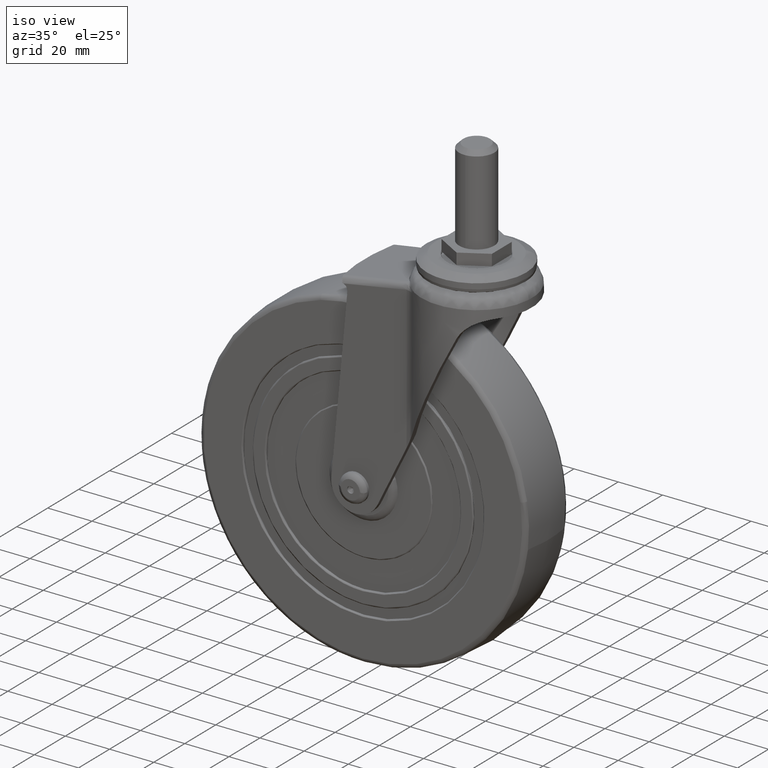
[diagram: clean part render]
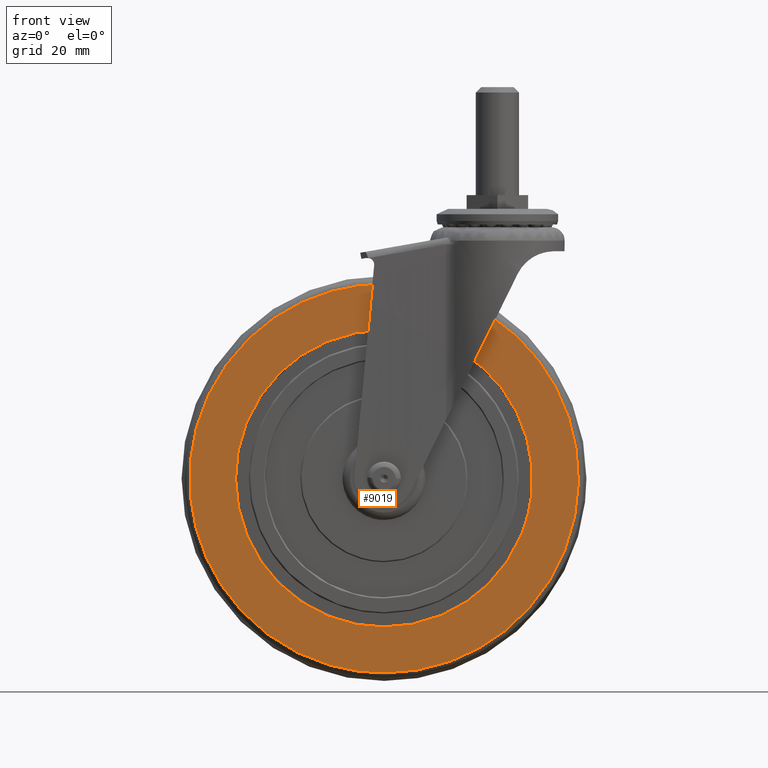
[diagram: tour spotlight — one face highlighted and labeled with its STEP entity id]
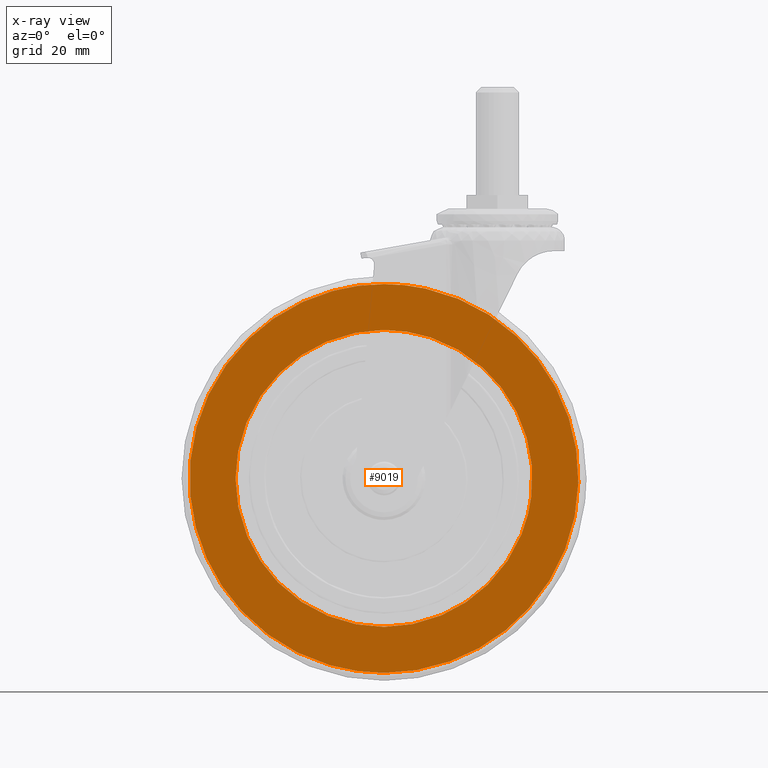
[diagram: x-ray of the same camera — body ghosted, this tour face saturated]
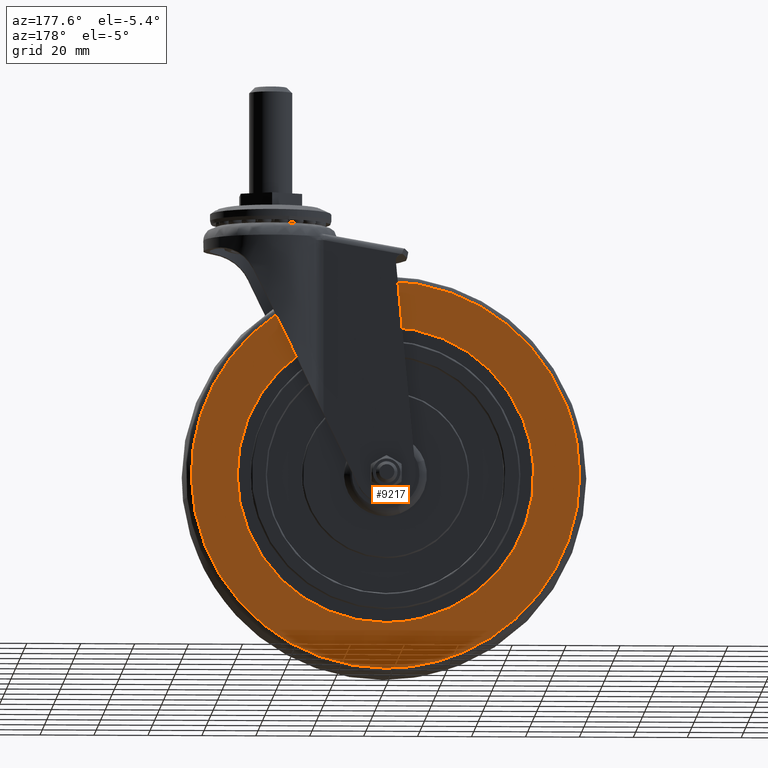
[diagram: tour spotlight — one face highlighted and labeled with its STEP entity id]
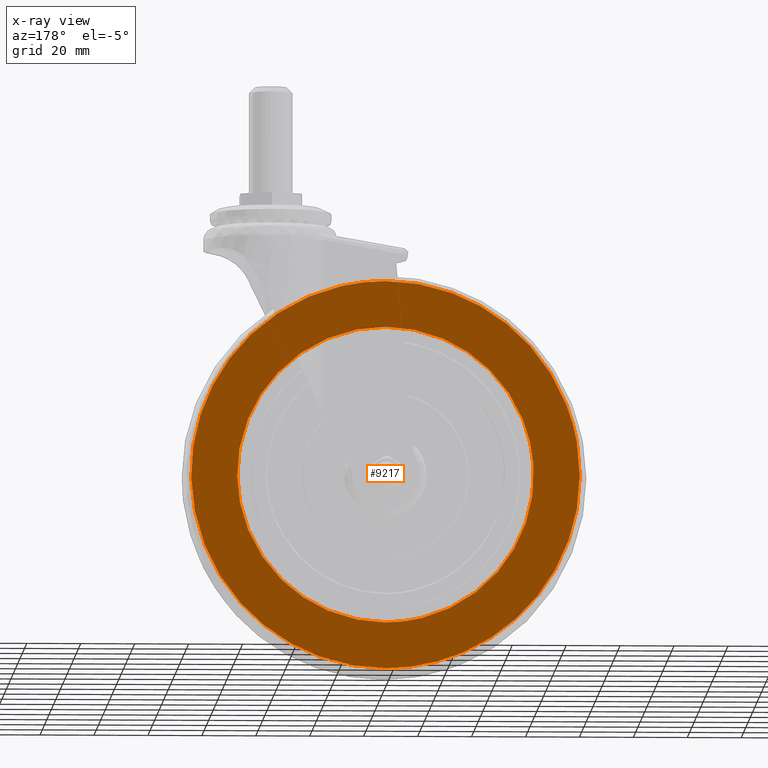
[diagram: x-ray of the same camera — body ghosted, this tour face saturated]
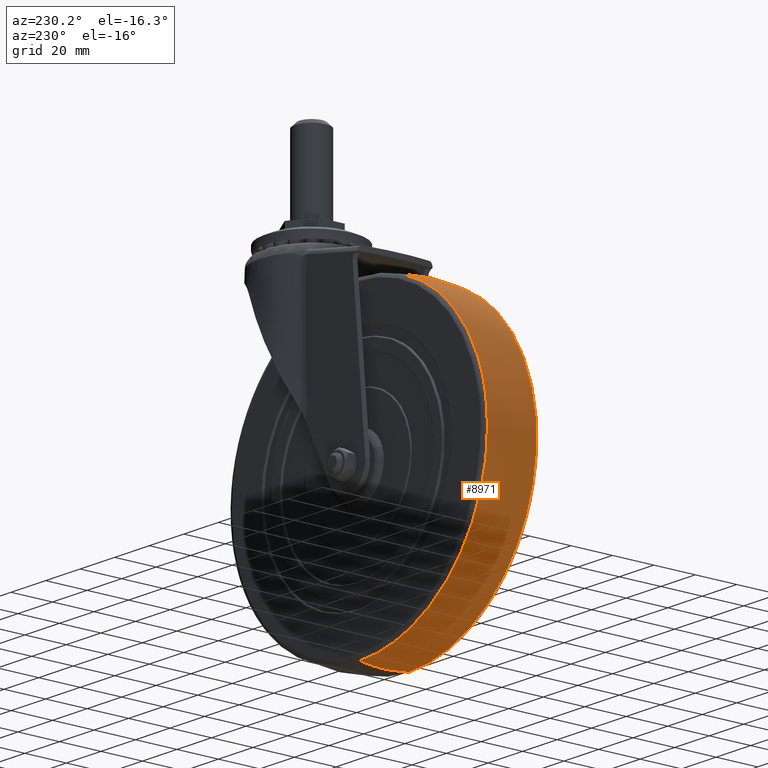
[diagram: tour spotlight — one face highlighted and labeled with its STEP entity id]
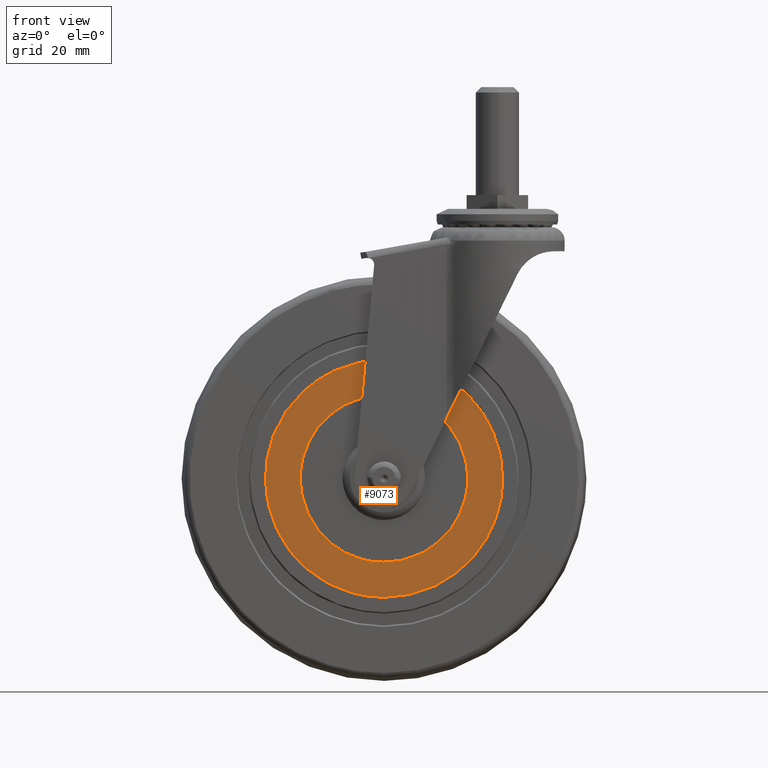
[diagram: tour spotlight — one face highlighted and labeled with its STEP entity id]
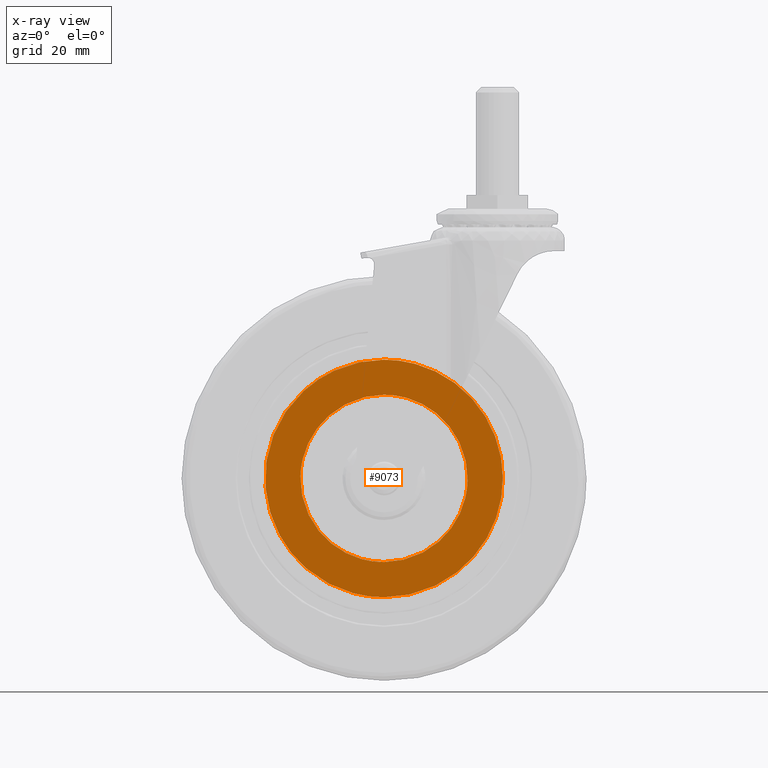
[diagram: x-ray of the same camera — body ghosted, this tour face saturated]
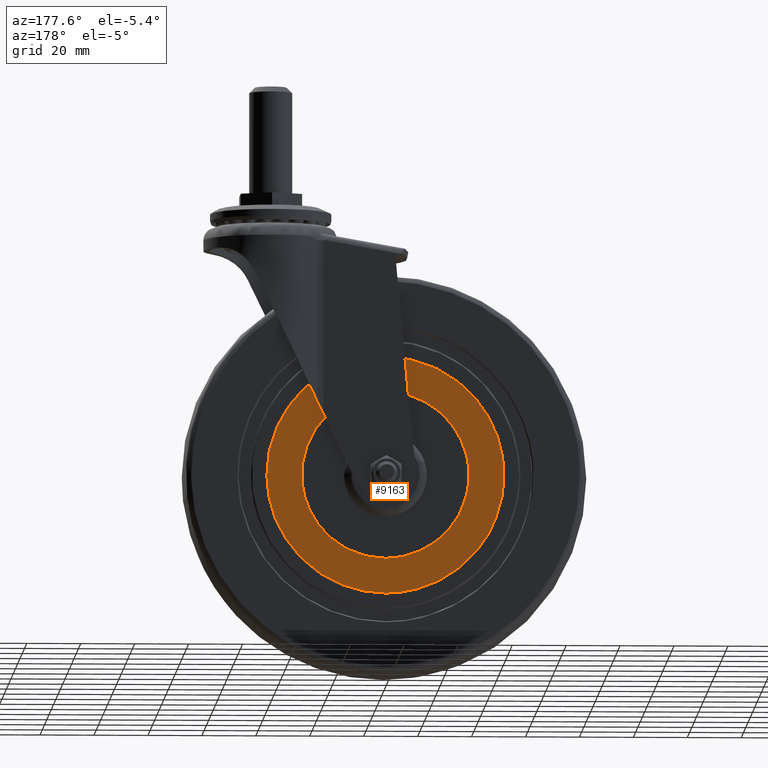
[diagram: tour spotlight — one face highlighted and labeled with its STEP entity id]
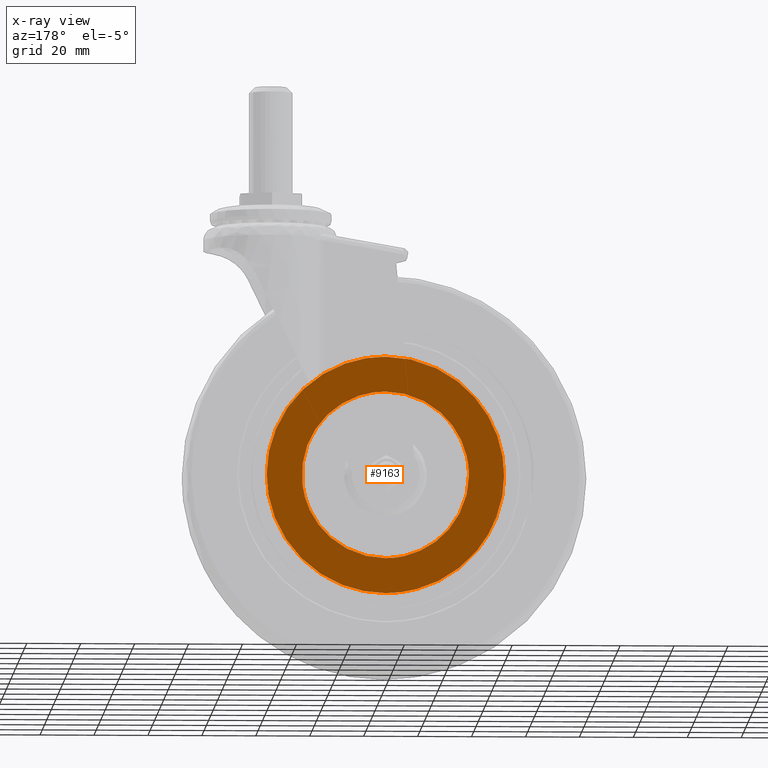
[diagram: x-ray of the same camera — body ghosted, this tour face saturated]
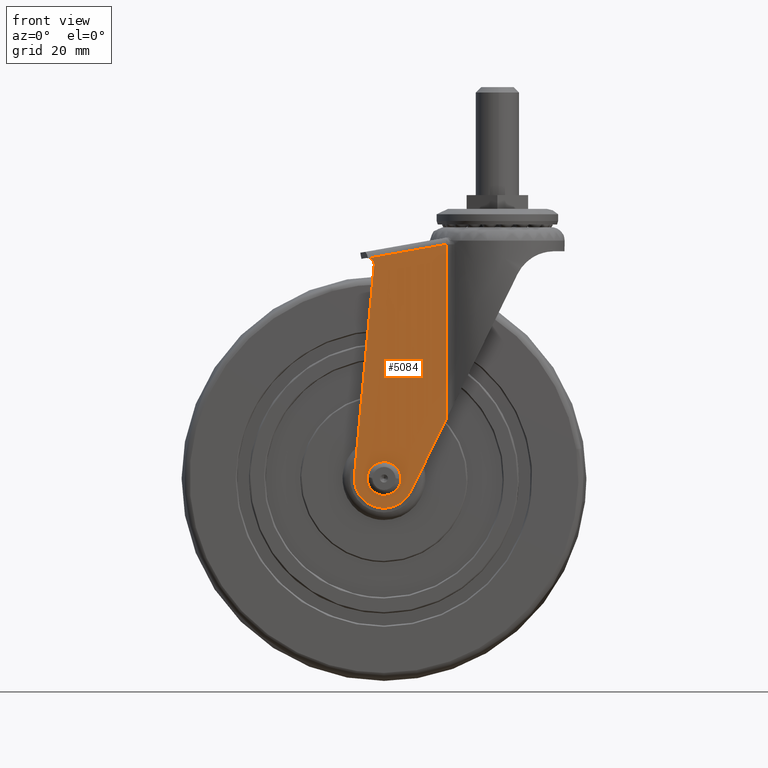
[diagram: tour spotlight — one face highlighted and labeled with its STEP entity id]
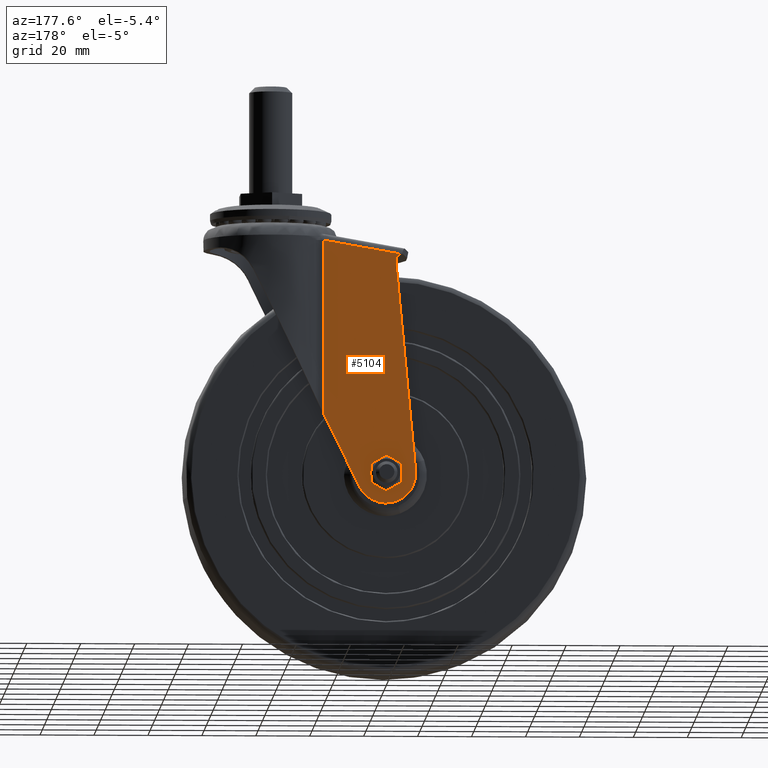
[diagram: tour spotlight — one face highlighted and labeled with its STEP entity id]
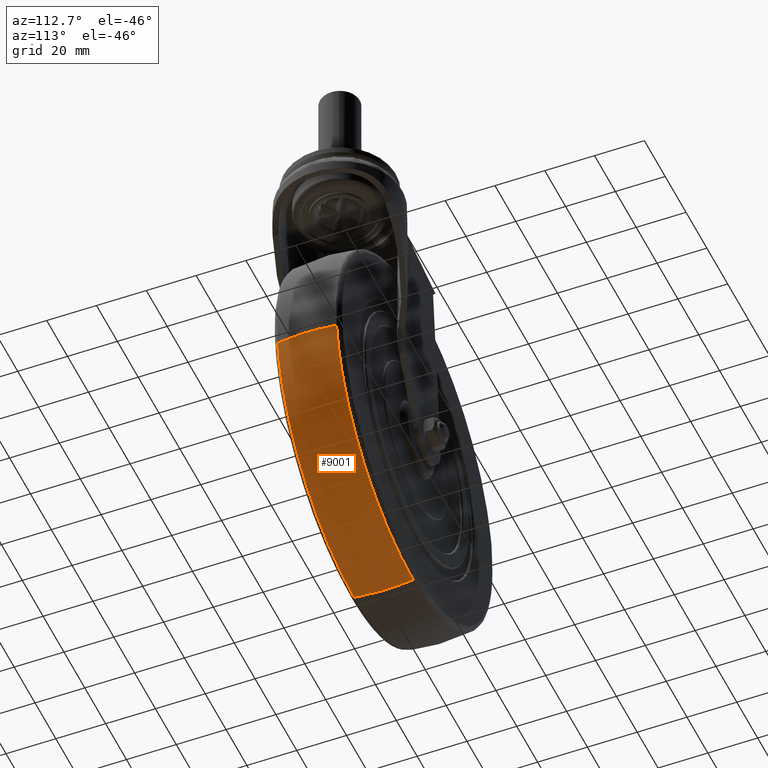
[diagram: tour spotlight — one face highlighted and labeled with its STEP entity id]
A machine part: a face-by-face anatomy tour. The part has 230 B-rep faces; the first image is the clean iso view, then the 8 largest visible faces are spotlighted one at a time (largest first), each with its STEP entity span.

Face 1 — front view, entity #9019. An x-ray twin of the same camera follows (body ghosted, this face saturated) — the face is partly hidden behind the body. In plain terms, the highlighted face is a freeform B-spline surface patch.
Definition (entity closure, byte-faithful):
#6711=CARTESIAN_POINT('',(54.632151098773697,-13.499999668968760,-6.350533887741136));
#6712=VERTEX_POINT('',#6711);
#6713=CARTESIAN_POINT('',(0.0,-13.499999668968760,55.000011048105200));
#6714=VERTEX_POINT('',#6713);
#6715=CARTESIAN_POINT('',(54.632151098773704,-13.499999668968757,-6.350533887741136));
#6716=CARTESIAN_POINT('',(55.000011048105193,-13.499999668968764,-3.185921240446380));
#6717=CARTESIAN_POINT('',(55.000011048105200,-13.499999668968760,1.855278E-015));
#6718=CARTESIAN_POINT('',(55.000011048105186,-13.499999668968757,55.000011048105186));
#6719=CARTESIAN_POINT('',(0.0,-13.499999668968760,55.000011048105200));
#6727=(BOUNDED_CURVE()B_SPLINE_CURVE(2,(#6715,#6716,#6717,#6718,#6719),.UNSPECIFIED.,.F.,.U.)B_SPLINE_CURVE_WITH_KNOTS((3,2,3),(0.229999999999433,0.250000000000000,0.500000000000000),.UNSPECIFIED.)CURVE()GEOMETRIC_REPRESENTATION_ITEM()RATIONAL_B_SPLINE_CURVE((0.956886118189544,0.976568542494260,1.0,0.707106781186547,1.0))REPRESENTATION_ITEM(''));
#6728=EDGE_CURVE('',#6712,#6714,#6727,.T.);
#6730=CARTESIAN_POINT('',(-55.000011044706312,-13.499999668968760,1.421085E-014));
#6731=VERTEX_POINT('',#6730);
#6732=CARTESIAN_POINT('',(0.0,-13.499999668968760,55.000011048105200));
#6733=CARTESIAN_POINT('',(-55.000011048104930,-13.499999668968758,55.000011048105208));
#6734=CARTESIAN_POINT('',(-55.000011044706305,-13.499999668968757,1.421085E-014));
#6742=(BOUNDED_CURVE()B_SPLINE_CURVE(2,(#6732,#6733,#6734),.UNSPECIFIED.,.F.,.U.)B_SPLINE_CURVE_WITH_KNOTS((3,3),(0.500000000000000,0.749999999999999),.UNSPECIFIED.)CURVE()GEOMETRIC_REPRESENTATION_ITEM()RATIONAL_B_SPLINE_CURVE((1.0,0.707106781186548,0.999999999999998))REPRESENTATION_ITEM(''));
#6743=EDGE_CURVE('',#6714,#6731,#6742,.T.);
#6801=CARTESIAN_POINT('',(0.0,-13.499999668968760,-55.000011048105200));
#6802=VERTEX_POINT('',#6801);
#6803=CARTESIAN_POINT('',(0.0,-13.499999668968760,-55.000011048105200));
#6804=CARTESIAN_POINT('',(48.977053383562591,-13.499999668968757,-55.000011048105193));
#6805=CARTESIAN_POINT('',(54.632151098773697,-13.499999668968760,-6.350533887741136));
#6813=(BOUNDED_CURVE()B_SPLINE_CURVE(2,(#6803,#6804,#6805),.UNSPECIFIED.,.F.,.U.)B_SPLINE_CURVE_WITH_KNOTS((3,3),(0.0,0.229999999999433),.UNSPECIFIED.)CURVE()GEOMETRIC_REPRESENTATION_ITEM()RATIONAL_B_SPLINE_CURVE((1.0,0.730538238692288,0.956886118189544))REPRESENTATION_ITEM(''));
#6814=EDGE_CURVE('',#6802,#6712,#6813,.T.);
#6820=CARTESIAN_POINT('',(-55.000011044706334,-13.499999668968760,1.421085E-014));
#6821=CARTESIAN_POINT('',(-55.000011048105222,-13.499999668968757,-55.000011048105193));
#6822=CARTESIAN_POINT('',(0.0,-13.499999668968760,-55.000011048105200));
#6830=(BOUNDED_CURVE()B_SPLINE_CURVE(2,(#6820,#6821,#6822),.UNSPECIFIED.,.F.,.U.)B_SPLINE_CURVE_WITH_KNOTS((3,3),(0.750000000000000,1.0),.UNSPECIFIED.)CURVE()GEOMETRIC_REPRESENTATION_ITEM()RATIONAL_B_SPLINE_CURVE((1.0,0.707106781186547,1.0))REPRESENTATION_ITEM(''));
#6831=EDGE_CURVE('',#6731,#6802,#6830,.T.);
#8700=CARTESIAN_POINT('',(-18.968385862982931,-13.499999668968350,69.477735961929994));
#8701=VERTEX_POINT('',#8700);
#8702=CARTESIAN_POINT('',(0.0,-13.499999668968760,-72.020521048105110));
#8703=VERTEX_POINT('',#8702);
#8704=CARTESIAN_POINT('',(-18.968385862982931,-13.499999668968343,69.477735961929994));
#8705=CARTESIAN_POINT('',(-72.020521048105110,-13.499999668968762,54.993766969026524));
#8706=CARTESIAN_POINT('',(-72.020521048105110,-13.499999668968760,1.855278E-015));
#8707=CARTESIAN_POINT('',(-72.020521048105110,-13.499999668968758,-72.020521048105110));
#8708=CARTESIAN_POINT('',(0.0,-13.499999668968760,-72.020521048105110));
#8716=(BOUNDED_CURVE()B_SPLINE_CURVE(2,(#8704,#8705,#8706,#8707,#8708),.UNSPECIFIED.,.F.,.U.)B_SPLINE_CURVE_WITH_KNOTS((3,2,3),(0.544901926752360,0.750000000000000,1.0),.UNSPECIFIED.)CURVE()GEOMETRIC_REPRESENTATION_ITEM()RATIONAL_B_SPLINE_CURVE((0.913685083899769,0.759712660616246,1.0,0.707106781186548,1.0))REPRESENTATION_ITEM(''));
#8717=EDGE_CURVE('',#8701,#8703,#8716,.T.);
#8783=CARTESIAN_POINT('',(71.203213792121772,-13.499999668968380,10.819325203385210));
#8784=VERTEX_POINT('',#8783);
#8798=CARTESIAN_POINT('',(0.0,-13.499999668968760,-72.020521048105110));
#8799=CARTESIAN_POINT('',(72.020521048105110,-13.499999668968758,-72.020521048105110));
#8800=CARTESIAN_POINT('',(72.020521048105110,-13.499999668968760,1.855278E-015));
#8801=CARTESIAN_POINT('',(72.020521048105095,-13.499999668968753,5.440532879558218));
#8802=CARTESIAN_POINT('',(71.203213792121772,-13.499999668968375,10.819325203385212));
#8810=(BOUNDED_CURVE()B_SPLINE_CURVE(2,(#8798,#8799,#8800,#8801,#8802),.UNSPECIFIED.,.F.,.U.)B_SPLINE_CURVE_WITH_KNOTS((3,2,3),(0.0,0.250000000000000,0.275897584623470),.UNSPECIFIED.)CURVE()GEOMETRIC_REPRESENTATION_ITEM()RATIONAL_B_SPLINE_CURVE((1.0,0.707106781186548,1.0,0.969659092320552,0.945604234434556))REPRESENTATION_ITEM(''));
#8811=EDGE_CURVE('',#8703,#8784,#8810,.T.);
#8839=CARTESIAN_POINT('',(0.0,-13.499999668968760,72.020521048105110));
#8840=VERTEX_POINT('',#8839);
#8841=CARTESIAN_POINT('',(0.0,-13.499999668968760,72.020521048105110));
#8842=CARTESIAN_POINT('',(-9.654627992465004,-13.499999668968766,72.020521048105110));
#8843=CARTESIAN_POINT('',(-18.968385862982927,-13.499999668968353,69.477735961929994));
#8851=(BOUNDED_CURVE()B_SPLINE_CURVE(2,(#8841,#8842,#8843),.UNSPECIFIED.,.F.,.U.)B_SPLINE_CURVE_WITH_KNOTS((3,3),(0.500000000000000,0.544901926752361),.UNSPECIFIED.)CURVE()GEOMETRIC_REPRESENTATION_ITEM()RATIONAL_B_SPLINE_CURVE((1.0,0.947394120570300,0.913685083899768))REPRESENTATION_ITEM(''));
#8852=EDGE_CURVE('',#8840,#8701,#8851,.T.);
#8854=CARTESIAN_POINT('',(71.203213792121772,-13.499999668968373,10.819325203385210));
#8855=CARTESIAN_POINT('',(61.903694774839117,-13.499999668968758,72.020521048105095));
#8856=CARTESIAN_POINT('',(0.0,-13.499999668968760,72.020521048105110));
#8864=(BOUNDED_CURVE()B_SPLINE_CURVE(2,(#8854,#8855,#8856),.UNSPECIFIED.,.F.,.U.)B_SPLINE_CURVE_WITH_KNOTS((3,3),(0.275897584623470,0.500000000000000),.UNSPECIFIED.)CURVE()GEOMETRIC_REPRESENTATION_ITEM()RATIONAL_B_SPLINE_CURVE((0.945604234434556,0.737447688865995,1.0))REPRESENTATION_ITEM(''));
#8865=EDGE_CURVE('',#8784,#8840,#8864,.T.);
#9002=CARTESIAN_POINT('',(-79.161611580593956,-13.499999668968760,79.215373525939796));
#9003=CARTESIAN_POINT('',(-79.161611580593956,-13.499999668968760,-79.215374813767085));
#9004=CARTESIAN_POINT('',(79.195605489624342,-13.499999668968760,79.215373525939796));
#9005=CARTESIAN_POINT('',(79.195605489624342,-13.499999668968760,-79.215374813767085));
#9006=B_SPLINE_SURFACE_WITH_KNOTS('',1,1,((#9002,#9004),(#9003,#9005)),.UNSPECIFIED.,.F.,.F.,.U.,(2,2),(2,2),(0.0,158.430748339706890),(0.0,158.357217070218300),.UNSPECIFIED.);
#9007=ORIENTED_EDGE('',*,*,#8811,.T.);
#9008=ORIENTED_EDGE('',*,*,#8865,.T.);
#9009=ORIENTED_EDGE('',*,*,#8852,.T.);
#9010=ORIENTED_EDGE('',*,*,#8717,.T.);
#9011=EDGE_LOOP('',(#9007,#9008,#9009,#9010));
#9012=FACE_OUTER_BOUND('',#9011,.T.);
#9013=ORIENTED_EDGE('',*,*,#6743,.F.);
#9014=ORIENTED_EDGE('',*,*,#6728,.F.);
#9015=ORIENTED_EDGE('',*,*,#6814,.F.);
#9016=ORIENTED_EDGE('',*,*,#6831,.F.);
#9017=EDGE_LOOP('',(#9013,#9014,#9015,#9016));
#9018=FACE_BOUND('',#9017,.T.);
#9019=ADVANCED_FACE('',(#9012,#9018),#9006,.T.);

Face 2 — auxiliary view, entity #9217. An x-ray twin of the same camera follows (body ghosted, this face saturated) — the face is partly hidden behind the body. In plain terms, the highlighted face is a freeform B-spline surface patch.
Definition (entity closure, byte-faithful):
#8319=CARTESIAN_POINT('',(54.995668466085057,13.499999668968780,-0.691132332459890));
#8320=VERTEX_POINT('',#8319);
#8334=CARTESIAN_POINT('',(0.0,13.499999668968780,-55.000011048105200));
#8335=VERTEX_POINT('',#8334);
#8336=CARTESIAN_POINT('',(0.0,13.499999668968780,-55.000011048105200));
#8337=CARTESIAN_POINT('',(54.313167054643216,13.499999668968782,-55.000011048105193));
#8338=CARTESIAN_POINT('',(54.995668466085057,13.499999668968778,-0.691132332459890));
#8346=(BOUNDED_CURVE()B_SPLINE_CURVE(2,(#8336,#8337,#8338),.UNSPECIFIED.,.F.,.U.)B_SPLINE_CURVE_WITH_KNOTS((3,3),(0.0,0.247784295920450),.UNSPECIFIED.)CURVE()GEOMETRIC_REPRESENTATION_ITEM()RATIONAL_B_SPLINE_CURVE((1.0,0.709702639985737,0.994854295641071))REPRESENTATION_ITEM(''));
#8347=EDGE_CURVE('',#8335,#8320,#8346,.T.);
#8349=CARTESIAN_POINT('',(-54.866123052492512,13.499999668968780,3.835329605313900));
#8350=VERTEX_POINT('',#8349);
#8351=CARTESIAN_POINT('',(-54.866123052492526,13.499999668968780,3.835329605313900));
#8352=CARTESIAN_POINT('',(-55.000011048105193,13.499999668968782,1.920001759125629));
#8353=CARTESIAN_POINT('',(-55.000011048105200,13.499999668968780,1.855278E-015));
#8354=CARTESIAN_POINT('',(-55.000011048105186,13.499999668968782,-55.000011048105186));
#8355=CARTESIAN_POINT('',(0.0,13.499999668968780,-55.000011048105200));
#8363=(BOUNDED_CURVE()B_SPLINE_CURVE(2,(#8351,#8352,#8353,#8354,#8355),.UNSPECIFIED.,.F.,.U.)B_SPLINE_CURVE_WITH_KNOTS((3,2,3),(0.737833686533030,0.750000000000000,1.0),.UNSPECIFIED.)CURVE()GEOMETRIC_REPRESENTATION_ITEM()RATIONAL_B_SPLINE_CURVE((0.972879876382616,0.985746277150263,1.0,0.707106781186547,1.0))REPRESENTATION_ITEM(''));
#8364=EDGE_CURVE('',#8350,#8335,#8363,.T.);
#8407=CARTESIAN_POINT('',(0.0,13.499999668968780,55.000011048105200));
#8408=VERTEX_POINT('',#8407);
#8409=CARTESIAN_POINT('',(0.0,13.499999668968780,55.000011048105200));
#8410=CARTESIAN_POINT('',(-51.289536901800425,13.499999668968783,55.000011048105193));
#8411=CARTESIAN_POINT('',(-54.866123052492512,13.499999668968774,3.835329605313901));
#8419=(BOUNDED_CURVE()B_SPLINE_CURVE(2,(#8409,#8410,#8411),.UNSPECIFIED.,.F.,.U.)B_SPLINE_CURVE_WITH_KNOTS((3,3),(0.500000000000000,0.737833686533031),.UNSPECIFIED.)CURVE()GEOMETRIC_REPRESENTATION_ITEM()RATIONAL_B_SPLINE_CURVE((1.0,0.721360504036283,0.972879876382618))REPRESENTATION_ITEM(''));
#8420=EDGE_CURVE('',#8408,#8350,#8419,.T.);
#8422=CARTESIAN_POINT('',(54.995668466085057,13.499999668968778,-0.691132332459890));
#8423=CARTESIAN_POINT('',(55.000011048105208,13.499999668968783,-0.345579809171997));
#8424=CARTESIAN_POINT('',(55.000011048105200,13.499999668968780,1.855278E-015));
#8425=CARTESIAN_POINT('',(55.000011048105186,13.499999668968782,55.000011048105186));
#8426=CARTESIAN_POINT('',(0.0,13.499999668968780,55.000011048105200));
#8434=(BOUNDED_CURVE()B_SPLINE_CURVE(2,(#8422,#8423,#8424,#8425,#8426),.UNSPECIFIED.,.F.,.U.)B_SPLINE_CURVE_WITH_KNOTS((3,2,3),(0.247784295920450,0.250000000000000,0.500000000000000),.UNSPECIFIED.)CURVE()GEOMETRIC_REPRESENTATION_ITEM()RATIONAL_B_SPLINE_CURVE((0.994854295641071,0.997404141200810,1.0,0.707106781186547,1.0))REPRESENTATION_ITEM(''));
#8435=EDGE_CURVE('',#8320,#8408,#8434,.T.);
#8477=CARTESIAN_POINT('',(-28.854809778042270,13.500000000000000,-65.987537819067441));
#8478=VERTEX_POINT('',#8477);
#8479=CARTESIAN_POINT('',(0.0,13.500000000000000,-72.020519245974285));
#8480=VERTEX_POINT('',#8479);
#8481=CARTESIAN_POINT('',(-28.854809778042270,13.500000000000000,-65.987537819067441));
#8482=CARTESIAN_POINT('',(-15.058094628135253,13.500000000000000,-72.020519245974270));
#8483=CARTESIAN_POINT('',(0.0,13.500000000000000,-72.020519245974285));
#8491=(BOUNDED_CURVE()B_SPLINE_CURVE(2,(#8481,#8482,#8483),.UNSPECIFIED.,.F.,.U.)B_SPLINE_CURVE_WITH_KNOTS((3,3),(0.931970470086370,1.0),.UNSPECIFIED.)CURVE()GEOMETRIC_REPRESENTATION_ITEM()RATIONAL_B_SPLINE_CURVE((0.883973368981325,0.920298448036923,1.0))REPRESENTATION_ITEM(''));
#8492=EDGE_CURVE('',#8478,#8480,#8491,.T.);
#8494=CARTESIAN_POINT('',(0.0,13.500000000000000,72.020519245974285));
#8495=VERTEX_POINT('',#8494);
#8496=CARTESIAN_POINT('',(0.0,13.500000000000000,-72.020519245974285));
#8497=CARTESIAN_POINT('',(72.020519245974299,13.500000000000000,-72.020519245974299));
#8498=CARTESIAN_POINT('',(72.020519245974285,13.500000000000000,1.855278E-015));
#8499=CARTESIAN_POINT('',(72.020519245974299,13.500000000000000,72.020519245974299));
#8500=CARTESIAN_POINT('',(0.0,13.500000000000000,72.020519245974285));
#8508=(BOUNDED_CURVE()B_SPLINE_CURVE(2,(#8496,#8497,#8498,#8499,#8500),.UNSPECIFIED.,.F.,.U.)B_SPLINE_CURVE_WITH_KNOTS((3,2,3),(0.0,0.250000000000000,0.500000000000000),.UNSPECIFIED.)CURVE()GEOMETRIC_REPRESENTATION_ITEM()RATIONAL_B_SPLINE_CURVE((1.0,0.707106781186548,1.0,0.707106781186548,1.0))REPRESENTATION_ITEM(''));
#8509=EDGE_CURVE('',#8480,#8495,#8508,.T.);
#8511=CARTESIAN_POINT('',(-70.908834619511140,13.500000000000000,12.605251590490081));
#8512=VERTEX_POINT('',#8511);
#8513=CARTESIAN_POINT('',(0.0,13.500000000000000,72.020519245974285));
#8514=CARTESIAN_POINT('',(-60.346760058588565,13.499999999999995,72.020519245974299));
#8515=CARTESIAN_POINT('',(-70.908834619511140,13.499999999999998,12.605251590490088));
#8523=(BOUNDED_CURVE()B_SPLINE_CURVE(2,(#8513,#8514,#8515),.UNSPECIFIED.,.F.,.U.)B_SPLINE_CURVE_WITH_KNOTS((3,3),(0.500000000000000,0.719918253208982),.UNSPECIFIED.)CURVE()GEOMETRIC_REPRESENTATION_ITEM()RATIONAL_B_SPLINE_CURVE((1.0,0.742349739767158,0.937995440888285))REPRESENTATION_ITEM(''));
#8524=EDGE_CURVE('',#8495,#8512,#8523,.T.);
#8636=CARTESIAN_POINT('',(-70.908834619511140,13.499999999999995,12.605251590490086));
#8637=CARTESIAN_POINT('',(-72.020519245974285,13.500000000000002,6.351646741136764));
#8638=CARTESIAN_POINT('',(-72.020519245974285,13.500000000000000,1.855278E-015));
#8639=CARTESIAN_POINT('',(-72.020519245974270,13.499999999999998,-47.112180775148900));
#8640=CARTESIAN_POINT('',(-28.854809778042274,13.499999999999996,-65.987537819067441));
#8648=(BOUNDED_CURVE()B_SPLINE_CURVE(2,(#8636,#8637,#8638,#8639,#8640),.UNSPECIFIED.,.F.,.U.)B_SPLINE_CURVE_WITH_KNOTS((3,2,3),(0.719918253208982,0.750000000000000,0.931970470086370),.UNSPECIFIED.)CURVE()GEOMETRIC_REPRESENTATION_ITEM()RATIONAL_B_SPLINE_CURVE((0.937995440888286,0.964757041419390,1.0,0.786808333149625,0.883973368981325))REPRESENTATION_ITEM(''));
#8649=EDGE_CURVE('',#8512,#8478,#8648,.T.);
#9200=CARTESIAN_POINT('',(-79.215220317239314,13.499999834484401,-79.215364268389251));
#9201=CARTESIAN_POINT('',(-79.215220317239314,13.499999834484401,79.215361692734760));
#9202=CARTESIAN_POINT('',(79.215354845503953,13.499999834484401,-79.215364268389251));
#9203=CARTESIAN_POINT('',(79.215354845503953,13.499999834484401,79.215361692734760));
#9204=B_SPLINE_SURFACE_WITH_KNOTS('',1,1,((#9200,#9202),(#9201,#9203)),.UNSPECIFIED.,.F.,.F.,.U.,(2,2),(2,2),(0.0,158.430725961124010),(0.0,158.430575162743310),.UNSPECIFIED.);
#9205=ORIENTED_EDGE('',*,*,#8492,.F.);
#9206=ORIENTED_EDGE('',*,*,#8649,.F.);
#9207=ORIENTED_EDGE('',*,*,#8524,.F.);
#9208=ORIENTED_EDGE('',*,*,#8509,.F.);
#9209=EDGE_LOOP('',(#9205,#9206,#9207,#9208));
#9210=FACE_OUTER_BOUND('',#9209,.T.);
#9211=ORIENTED_EDGE('',*,*,#8347,.T.);
#9212=ORIENTED_EDGE('',*,*,#8435,.T.);
#9213=ORIENTED_EDGE('',*,*,#8420,.T.);
#9214=ORIENTED_EDGE('',*,*,#8364,.T.);
#9215=EDGE_LOOP('',(#9211,#9212,#9213,#9214));
#9216=FACE_BOUND('',#9215,.T.);
#9217=ADVANCED_FACE('',(#9210,#9216),#9204,.T.);

Face 3 — auxiliary view, entity #8971. In plain terms, the highlighted face is a freeform B-spline surface patch.
Definition (entity closure, byte-faithful):
#8526=CARTESIAN_POINT('',(-72.849599156032269,11.838243067299739,12.950255501209700));
#8527=VERTEX_POINT('',#8526);
#8541=CARTESIAN_POINT('',(0.0,11.838235294117659,73.991710988502987));
#8542=VERTEX_POINT('',#8541);
#8543=CARTESIAN_POINT('',(0.0,11.838235294117659,73.991710988502987));
#8544=CARTESIAN_POINT('',(-61.998443740864246,11.838235294117657,73.991710988502987));
#8545=CARTESIAN_POINT('',(-72.849599156032255,11.838243067299732,12.950255501209703));
#8553=(BOUNDED_CURVE()B_SPLINE_CURVE(2,(#8543,#8544,#8545),.UNSPECIFIED.,.F.,.U.)B_SPLINE_CURVE_WITH_KNOTS((3,3),(0.500000000000000,0.719918256181921),.UNSPECIFIED.)CURVE()GEOMETRIC_REPRESENTATION_ITEM()RATIONAL_B_SPLINE_CURVE((1.0,0.742349736284142,0.937995446177913))REPRESENTATION_ITEM(''));
#8554=EDGE_CURVE('',#8542,#8527,#8553,.T.);
#8556=CARTESIAN_POINT('',(73.496826248795060,11.838279870516120,-8.543342112623503));
#8557=VERTEX_POINT('',#8556);
#8558=CARTESIAN_POINT('',(73.496826248795045,11.838279870516114,-8.543342112623503));
#8559=CARTESIAN_POINT('',(73.991703586735184,11.838278720842078,-4.286003632551815));
#8560=CARTESIAN_POINT('',(73.991703806785964,11.838277429787709,0.000000834809724));
#8561=CARTESIAN_POINT('',(73.991707605646639,11.838255141588478,73.991711381729473));
#8562=CARTESIAN_POINT('',(0.0,11.838235294117659,73.991710988502987));
#8570=(BOUNDED_CURVE()B_SPLINE_CURVE(2,(#8558,#8559,#8560,#8561,#8562),.UNSPECIFIED.,.F.,.U.)B_SPLINE_CURVE_WITH_KNOTS((3,2,3),(0.230000121728145,0.250000000000000,0.500000000000000),.UNSPECIFIED.)CURVE()GEOMETRIC_REPRESENTATION_ITEM()RATIONAL_B_SPLINE_CURVE((0.956886357781300,0.976568685108317,1.0,0.707106781186547,1.0))REPRESENTATION_ITEM(''));
#8571=EDGE_CURVE('',#8557,#8542,#8570,.T.);
#8573=CARTESIAN_POINT('',(0.0,11.838254326075949,-73.991707722818305));
#8574=VERTEX_POINT('',#8573);
#8588=CARTESIAN_POINT('',(-29.644560757733181,11.838253559906700,-67.793604920096286));
#8589=VERTEX_POINT('',#8588);
#8590=CARTESIAN_POINT('',(-29.644560757733181,11.838253559906700,-67.793604920096271));
#8591=CARTESIAN_POINT('',(-15.470231960353187,11.838254326075951,-73.991707722818305));
#8592=CARTESIAN_POINT('',(0.0,11.838254326075949,-73.991707722818305));
#8600=(BOUNDED_CURVE()B_SPLINE_CURVE(2,(#8590,#8591,#8592),.UNSPECIFIED.,.F.,.U.)B_SPLINE_CURVE_WITH_KNOTS((3,3),(0.931970472734252,1.0),.UNSPECIFIED.)CURVE()GEOMETRIC_REPRESENTATION_ITEM()RATIONAL_B_SPLINE_CURVE((0.883973371809055,0.920298451139110,1.0))REPRESENTATION_ITEM(''));
#8601=EDGE_CURVE('',#8589,#8574,#8600,.T.);
#8652=CARTESIAN_POINT('',(-72.849599156032255,11.838243067299732,12.950255501209703));
#8653=CARTESIAN_POINT('',(-73.991710988502973,11.838243970861921,6.525491262426641));
#8654=CARTESIAN_POINT('',(-73.991710988502987,11.838244810096811,0.000001632842343));
#8655=CARTESIAN_POINT('',(-73.991710988503002,11.838251034969144,-48.401632901181387));
#8656=CARTESIAN_POINT('',(-29.644560757733181,11.838253559906697,-67.793604920096286));
#8664=(BOUNDED_CURVE()B_SPLINE_CURVE(2,(#8652,#8653,#8654,#8655,#8656),.UNSPECIFIED.,.F.,.U.)B_SPLINE_CURVE_WITH_KNOTS((3,2,3),(0.719918256181921,0.750000000000000,0.931970472734251),.UNSPECIFIED.)CURVE()GEOMETRIC_REPRESENTATION_ITEM()RATIONAL_B_SPLINE_CURVE((0.937995446177913,0.964757044902405,1.0,0.786808330047438,0.883973371809053))REPRESENTATION_ITEM(''));
#8665=EDGE_CURVE('',#8527,#8589,#8664,.T.);
#8719=CARTESIAN_POINT('',(-19.487547503535630,-11.838235083390590,71.379330313375007));
#8720=VERTEX_POINT('',#8719);
#8734=CARTESIAN_POINT('',(0.0,-11.838242518919550,-73.991709748803032));
#8735=VERTEX_POINT('',#8734);
#8736=CARTESIAN_POINT('',(-19.487547503535634,-11.838235083390598,71.379330313375007));
#8737=CARTESIAN_POINT('',(-73.991711046974999,-11.838235847658424,56.498937615196795));
#8738=CARTESIAN_POINT('',(-73.991711046974999,-11.838238736134871,0.000000649085985));
#8739=CARTESIAN_POINT('',(-73.991711046975013,-11.838242518919547,-73.991709748803018));
#8740=CARTESIAN_POINT('',(0.0,-11.838242518919550,-73.991709748803032));
#8748=(BOUNDED_CURVE()B_SPLINE_CURVE(2,(#8736,#8737,#8738,#8739,#8740),.UNSPECIFIED.,.F.,.U.)B_SPLINE_CURVE_WITH_KNOTS((3,2,3),(0.544901926763766,0.750000000000000,1.0),.UNSPECIFIED.)CURVE()GEOMETRIC_REPRESENTATION_ITEM()RATIONAL_B_SPLINE_CURVE((0.913685083882644,0.759712660629609,1.0,0.707106781186548,1.0))REPRESENTATION_ITEM(''));
#8749=EDGE_CURVE('',#8720,#8735,#8748,.T.);
#8751=CARTESIAN_POINT('',(73.496827004834344,-11.838275480224100,-8.543342132971789));
#8752=VERTEX_POINT('',#8751);
#8766=CARTESIAN_POINT('',(73.152028383067346,-11.838269994625740,11.115447494822860));
#8767=VERTEX_POINT('',#8766);
#8768=CARTESIAN_POINT('',(73.496827004834344,-11.838275480224102,-8.543342132971789));
#8769=CARTESIAN_POINT('',(73.991704317618584,-11.838274434991732,-4.286003680446660));
#8770=CARTESIAN_POINT('',(73.991704517678912,-11.838273261222669,0.000000758971682));
#8771=CARTESIAN_POINT('',(73.991704778580399,-11.838271730493961,5.589439315487726));
#8772=CARTESIAN_POINT('',(73.152028383067346,-11.838269994625740,11.115447494822860));
#8780=(BOUNDED_CURVE()B_SPLINE_CURVE(2,(#8768,#8769,#8770,#8771,#8772),.UNSPECIFIED.,.F.,.U.)B_SPLINE_CURVE_WITH_KNOTS((3,2,3),(0.230000121881506,0.250000000000000,0.275897581044349),.UNSPECIFIED.)CURVE()GEOMETRIC_REPRESENTATION_ITEM()RATIONAL_B_SPLINE_CURVE((0.956886358083150,0.976568685287990,1.0,0.969659096513754,0.945604241083458))REPRESENTATION_ITEM(''));
#8781=EDGE_CURVE('',#8752,#8767,#8780,.T.);
#8868=CARTESIAN_POINT('',(0.0,-11.838234953350200,73.991711046974999));
#8869=VERTEX_POINT('',#8868);
#8870=CARTESIAN_POINT('',(73.152028383067346,-11.838269994625735,11.115447494822856));
#8871=CARTESIAN_POINT('',(63.597987610644743,-11.838250463058221,73.991711354259863));
#8872=CARTESIAN_POINT('',(0.0,-11.838234953350200,73.991711046974999));
#8880=(BOUNDED_CURVE()B_SPLINE_CURVE(2,(#8870,#8871,#8872),.UNSPECIFIED.,.F.,.U.)B_SPLINE_CURVE_WITH_KNOTS((3,3),(0.275897581044349,0.500000000000000),.UNSPECIFIED.)CURVE()GEOMETRIC_REPRESENTATION_ITEM()RATIONAL_B_SPLINE_CURVE((0.945604241083458,0.737447684672794,1.0))REPRESENTATION_ITEM(''));
#8881=EDGE_CURVE('',#8767,#8869,#8880,.T.);
#8883=CARTESIAN_POINT('',(0.0,-11.838234953350200,73.991711046974999));
#8884=CARTESIAN_POINT('',(-9.918873599912821,-11.838234953350204,73.991711046974999));
#8885=CARTESIAN_POINT('',(-19.487547503535634,-11.838235083390593,71.379330313375007));
#8893=(BOUNDED_CURVE()B_SPLINE_CURVE(2,(#8883,#8884,#8885),.UNSPECIFIED.,.F.,.U.)B_SPLINE_CURVE_WITH_KNOTS((3,3),(0.500000000000000,0.544901926763765),.UNSPECIFIED.)CURVE()GEOMETRIC_REPRESENTATION_ITEM()RATIONAL_B_SPLINE_CURVE((1.0,0.947394120556940,0.913685083882645))REPRESENTATION_ITEM(''));
#8894=EDGE_CURVE('',#8869,#8720,#8893,.T.);
#8900=CARTESIAN_POINT('',(73.288543493720610,-13.001275285669470,-8.519182744574898));
#8901=CARTESIAN_POINT('',(75.729626795122428,0.000003545394337,-8.802938346037413));
#8902=CARTESIAN_POINT('',(73.288542208300740,13.001282131850179,-8.519182595155547));
#8903=CARTESIAN_POINT('',(73.782024112018192,-13.001275285669461,-4.273884006213540));
#8904=CARTESIAN_POINT('',(76.239544188384670,0.000003545394338,-4.416237863751864));
#8905=CARTESIAN_POINT('',(73.782022817943115,13.001282131850171,-4.273883931253184));
#8906=CARTESIAN_POINT('',(73.782024112018206,-13.001275285669463,1.734723E-015));
#8907=CARTESIAN_POINT('',(76.239544188384698,0.000003545394335,1.734723E-015));
#8908=CARTESIAN_POINT('',(73.782022817943130,13.001282131850170,1.734723E-015));
#8909=CARTESIAN_POINT('',(73.782024112018206,-13.001275285669466,73.782024112018206));
#8910=CARTESIAN_POINT('',(76.239544188384670,0.000003545394335,76.239544188384670));
#8911=CARTESIAN_POINT('',(73.782022817943115,13.001282131850168,73.782022817943115));
#8912=CARTESIAN_POINT('',(0.0,-13.001275285669463,73.782024112018206));
#8913=CARTESIAN_POINT('',(0.0,0.000003545394335,76.239544188384698));
#8914=CARTESIAN_POINT('',(0.0,13.001282131850170,73.782022817943130));
#8915=CARTESIAN_POINT('',(-73.782024112018206,-13.001275285669466,73.782024112018206));
#8916=CARTESIAN_POINT('',(-76.239544188384670,0.000003545394335,76.239544188384670));
#8917=CARTESIAN_POINT('',(-73.782022817943115,13.001282131850168,73.782022817943115));
#8918=CARTESIAN_POINT('',(-73.782024112018206,-13.001275285669463,1.734723E-015));
#8919=CARTESIAN_POINT('',(-76.239544188384698,0.000003545394335,1.734723E-015));
#8920=CARTESIAN_POINT('',(-73.782022817943130,13.001282131850170,1.734723E-015));
#8921=CARTESIAN_POINT('',(-73.782024112018206,-13.001275285669466,-73.782024112018206));
#8922=CARTESIAN_POINT('',(-76.239544188384670,0.000003545394335,-76.239544188384670));
#8923=CARTESIAN_POINT('',(-73.782022817943115,13.001282131850168,-73.782022817943115));
#8924=CARTESIAN_POINT('',(0.0,-13.001275285669463,-73.782024112018206));
#8925=CARTESIAN_POINT('',(0.0,0.000003545394335,-76.239544188384698));
#8926=CARTESIAN_POINT('',(0.0,13.001282131850170,-73.782022817943130));
#8934=(BOUNDED_SURFACE()B_SPLINE_SURFACE(2,2,((#8900,#8903,#8906,#8909,#8912,#8915,#8918,#8921,#8924),(#8901,#8904,#8907,#8910,#8913,#8916,#8919,#8922,#8925),(#8902,#8905,#8908,#8911,#8914,#8917,#8920,#8923,#8926)),.UNSPECIFIED.,.F.,.F.,.U.)B_SPLINE_SURFACE_WITH_KNOTS((3,3),(3,2,2,2,3),(0.0,26.230760638616410),(0.0,9.941123423073893,134.205192135002390,258.469260846930920,382.733329558859510),.UNSPECIFIED.)GEOMETRIC_REPRESENTATION_ITEM()RATIONAL_B_SPLINE_SURFACE(((0.894753405890069,0.913157803991743,0.935067800861204,0.661192782858150,0.935067800861204,0.661192782858150,0.935067800861204,0.661192782858150,0.935067800861204),(0.879185000660446,0.897269168488875,0.918797938857719,0.649688253106516,0.918797938857719,0.649688253106516,0.918797938857719,0.649688253106516,0.918797938857719),(0.894753414233211,0.913157812506496,0.935067809580258,0.661192789023452,0.935067809580258,0.661192789023452,0.935067809580258,0.661192789023452,0.935067809580258)))REPRESENTATION_ITEM('')SURFACE());
#8935=ORIENTED_EDGE('',*,*,#8571,.T.);
#8936=ORIENTED_EDGE('',*,*,#8554,.T.);
#8937=ORIENTED_EDGE('',*,*,#8665,.T.);
#8938=ORIENTED_EDGE('',*,*,#8601,.T.);
#8939=CARTESIAN_POINT('',(0.0,-11.838242518919547,-73.991709748803032));
#8940=CARTESIAN_POINT('',(0.0,0.000006077397001,-76.023027111320971));
#8941=CARTESIAN_POINT('',(0.0,11.838254326075951,-73.991707722818305));
#8949=(BOUNDED_CURVE()B_SPLINE_CURVE(2,(#8939,#8940,#8941),.UNSPECIFIED.,.F.,.U.)B_SPLINE_CURVE_WITH_KNOTS((3,3),(0.449439634060108,0.550560417104476),.UNSPECIFIED.)CURVE()GEOMETRIC_REPRESENTATION_ITEM()RATIONAL_B_SPLINE_CURVE((0.933657139120184,0.920208598153641,0.933657152729440))REPRESENTATION_ITEM(''));
#8950=EDGE_CURVE('',#8735,#8574,#8949,.T.);
#8951=ORIENTED_EDGE('',*,*,#8950,.F.);
#8952=ORIENTED_EDGE('',*,*,#8749,.F.);
#8953=ORIENTED_EDGE('',*,*,#8894,.F.);
#8954=ORIENTED_EDGE('',*,*,#8881,.F.);
#8955=ORIENTED_EDGE('',*,*,#8781,.F.);
#8956=CARTESIAN_POINT('',(73.496827004834344,-11.838275480224098,-8.543342132971789));
#8957=CARTESIAN_POINT('',(75.514568929924707,0.000002259777885,-8.777887909751460));
#8958=CARTESIAN_POINT('',(73.496826248795060,11.838279870516123,-8.543342112623503));
#8966=(BOUNDED_CURVE()B_SPLINE_CURVE(2,(#8956,#8957,#8958),.UNSPECIFIED.,.F.,.U.)B_SPLINE_CURVE_WITH_KNOTS((3,3),(0.449439491227082,0.550560527797609),.UNSPECIFIED.)CURVE()GEOMETRIC_REPRESENTATION_ITEM()RATIONAL_B_SPLINE_CURVE((0.893403591927880,0.880534801148880,0.893403596770094))REPRESENTATION_ITEM(''));
#8967=EDGE_CURVE('',#8752,#8557,#8966,.T.);
#8968=ORIENTED_EDGE('',*,*,#8967,.T.);
#8969=EDGE_LOOP('',(#8935,#8936,#8937,#8938,#8951,#8952,#8953,#8954,#8955,#8968));
#8970=FACE_OUTER_BOUND('',#8969,.T.);
#8971=ADVANCED_FACE('',(#8970),#8934,.T.);

Face 4 — front view, entity #9073. An x-ray twin of the same camera follows (body ghosted, this face saturated) — the face is partly hidden behind the body. In plain terms, the highlighted face is a freeform B-spline surface patch.
Definition (entity closure, byte-faithful):
#5660=CARTESIAN_POINT('',(-28.790938225397330,-12.500000000000149,-33.272839916383397));
#5661=VERTEX_POINT('',#5660);
#5662=CARTESIAN_POINT('',(0.0,-12.500000000000000,-44.0));
#5663=VERTEX_POINT('',#5662);
#5664=CARTESIAN_POINT('',(-28.790938225397326,-12.500000000000146,-33.272839916383404));
#5665=CARTESIAN_POINT('',(-16.393875044430835,-12.500000000000004,-44.000000000000007));
#5666=CARTESIAN_POINT('',(0.0,-12.500000000000000,-44.0));
#5674=(BOUNDED_CURVE()B_SPLINE_CURVE(2,(#5664,#5665,#5666),.UNSPECIFIED.,.F.,.U.)B_SPLINE_CURVE_WITH_KNOTS((3,3),(0.885882150293367,1.0),.UNSPECIFIED.)CURVE()GEOMETRIC_REPRESENTATION_ITEM()RATIONAL_B_SPLINE_CURVE((0.854663303072681,0.866302622701418,1.0))REPRESENTATION_ITEM(''));
#5675=EDGE_CURVE('',#5661,#5663,#5674,.T.);
#5746=CARTESIAN_POINT('',(-29.725966801394090,-12.500000000000000,32.440204958082582));
#5747=VERTEX_POINT('',#5746);
#5753=CARTESIAN_POINT('',(0.0,-12.500000000000000,44.0));
#5754=VERTEX_POINT('',#5753);
#5755=CARTESIAN_POINT('',(0.0,-12.500000000000000,44.0));
#5756=CARTESIAN_POINT('',(-17.110662379549844,-12.500000000000004,44.0));
#5757=CARTESIAN_POINT('',(-29.725966801394094,-12.500000000000002,32.440204958082568));
#5765=(BOUNDED_CURVE()B_SPLINE_CURVE(2,(#5755,#5756,#5757),.UNSPECIFIED.,.F.,.U.)B_SPLINE_CURVE_WITH_KNOTS((3,3),(0.500000000000000,0.618415198224244),.UNSPECIFIED.)CURVE()GEOMETRIC_REPRESENTATION_ITEM()RATIONAL_B_SPLINE_CURVE((1.0,0.861267965742673,0.853959782178418))REPRESENTATION_ITEM(''));
#5766=EDGE_CURVE('',#5754,#5747,#5765,.T.);
#5768=CARTESIAN_POINT('',(0.0,-12.500000000000000,-44.0));
#5769=CARTESIAN_POINT('',(43.999999999999993,-12.500000000000000,-43.999999999999993));
#5770=CARTESIAN_POINT('',(44.0,-12.500000000000000,1.855278E-015));
#5771=CARTESIAN_POINT('',(43.999999999999993,-12.500000000000000,43.999999999999993));
#5772=CARTESIAN_POINT('',(0.0,-12.500000000000000,44.0));
#5780=(BOUNDED_CURVE()B_SPLINE_CURVE(2,(#5768,#5769,#5770,#5771,#5772),.UNSPECIFIED.,.F.,.U.)B_SPLINE_CURVE_WITH_KNOTS((3,2,3),(0.0,0.250000000000000,0.500000000000000),.UNSPECIFIED.)CURVE()GEOMETRIC_REPRESENTATION_ITEM()RATIONAL_B_SPLINE_CURVE((1.0,0.707106781186548,1.0,0.707106781186548,1.0))REPRESENTATION_ITEM(''));
#5781=EDGE_CURVE('',#5663,#5754,#5780,.T.);
#5804=CARTESIAN_POINT('',(-29.725966801394094,-12.500000000000002,32.440204958082568));
#5805=CARTESIAN_POINT('',(-44.0,-12.500000000000000,19.360465248298990));
#5806=CARTESIAN_POINT('',(-44.0,-12.500000000000000,1.855278E-015));
#5807=CARTESIAN_POINT('',(-44.0,-12.500000000000004,-20.112461688398529));
#5808=CARTESIAN_POINT('',(-28.790938225397326,-12.500000000000146,-33.272839916383404));
#5816=(BOUNDED_CURVE()B_SPLINE_CURVE(2,(#5804,#5805,#5806,#5807,#5808),.UNSPECIFIED.,.F.,.U.)B_SPLINE_CURVE_WITH_KNOTS((3,2,3),(0.618415198224244,0.750000000000000,0.885882150293367),.UNSPECIFIED.)CURVE()GEOMETRIC_REPRESENTATION_ITEM()RATIONAL_B_SPLINE_CURVE((0.853959782178418,0.845838815443875,1.0,0.840804158485129,0.854663303072681))REPRESENTATION_ITEM(''));
#5817=EDGE_CURVE('',#5747,#5661,#5816,.T.);
#7159=CARTESIAN_POINT('',(-30.990209867778141,-12.500000004076250,0.779032958908664));
#7160=VERTEX_POINT('',#7159);
#7161=CARTESIAN_POINT('',(0.0,-12.500000000000000,-31.0));
#7162=VERTEX_POINT('',#7161);
#7163=CARTESIAN_POINT('',(-30.990209867778141,-12.500000004076245,0.779032958908664));
#7164=CARTESIAN_POINT('',(-31.0,-12.500000000000004,0.389577995990045));
#7165=CARTESIAN_POINT('',(-31.0,-12.500000000000000,1.855278E-015));
#7166=CARTESIAN_POINT('',(-31.000000000000007,-12.500000000000000,-30.999999999999993));
#7167=CARTESIAN_POINT('',(0.0,-12.500000000000000,-31.0));
#7175=(BOUNDED_CURVE()B_SPLINE_CURVE(2,(#7163,#7164,#7165,#7166,#7167),.UNSPECIFIED.,.F.,.U.)B_SPLINE_CURVE_WITH_KNOTS((3,2,3),(0.745579891767942,0.750000000000000,1.0),.UNSPECIFIED.)CURVE()GEOMETRIC_REPRESENTATION_ITEM()RATIONAL_B_SPLINE_CURVE((0.989826157677360,0.994821521089635,1.0,0.707106781186548,1.0))REPRESENTATION_ITEM(''));
#7176=EDGE_CURVE('',#7160,#7162,#7175,.T.);
#7178=CARTESIAN_POINT('',(30.990209867778141,-12.500000004076250,-0.779032958908662));
#7179=VERTEX_POINT('',#7178);
#7180=CARTESIAN_POINT('',(0.0,-12.500000000000000,-31.0));
#7181=CARTESIAN_POINT('',(30.230514161277707,-12.500000000000002,-31.0));
#7182=CARTESIAN_POINT('',(30.990209867778145,-12.500000004076247,-0.779032958908662));
#7190=(BOUNDED_CURVE()B_SPLINE_CURVE(2,(#7180,#7181,#7182),.UNSPECIFIED.,.F.,.U.)B_SPLINE_CURVE_WITH_KNOTS((3,3),(0.0,0.245579891767942),.UNSPECIFIED.)CURVE()GEOMETRIC_REPRESENTATION_ITEM()RATIONAL_B_SPLINE_CURVE((1.0,0.712285260096913,0.989826157677359))REPRESENTATION_ITEM(''));
#7191=EDGE_CURVE('',#7162,#7179,#7190,.T.);
#7279=CARTESIAN_POINT('',(0.0,-12.500000000000000,31.0));
#7280=VERTEX_POINT('',#7279);
#7281=CARTESIAN_POINT('',(0.0,-12.500000000000000,31.0));
#7282=CARTESIAN_POINT('',(-30.230514161277707,-12.500000000000000,31.0));
#7283=CARTESIAN_POINT('',(-30.990209867778137,-12.500000004076249,0.779032958908664));
#7291=(BOUNDED_CURVE()B_SPLINE_CURVE(2,(#7281,#7282,#7283),.UNSPECIFIED.,.F.,.U.)B_SPLINE_CURVE_WITH_KNOTS((3,3),(0.500000000000000,0.745579891767942),.UNSPECIFIED.)CURVE()GEOMETRIC_REPRESENTATION_ITEM()RATIONAL_B_SPLINE_CURVE((1.0,0.712285260096913,0.989826157677359))REPRESENTATION_ITEM(''));
#7292=EDGE_CURVE('',#7280,#7160,#7291,.T.);
#7326=CARTESIAN_POINT('',(30.990209867778145,-12.500000004076247,-0.779032958908662));
#7327=CARTESIAN_POINT('',(30.999999999999993,-12.499999999999995,-0.389577995990047));
#7328=CARTESIAN_POINT('',(31.0,-12.500000000000000,1.855278E-015));
#7329=CARTESIAN_POINT('',(31.000000000000007,-12.500000000000000,31.000000000000007));
#7330=CARTESIAN_POINT('',(0.0,-12.500000000000000,31.0));
#7338=(BOUNDED_CURVE()B_SPLINE_CURVE(2,(#7326,#7327,#7328,#7329,#7330),.UNSPECIFIED.,.F.,.U.)B_SPLINE_CURVE_WITH_KNOTS((3,2,3),(0.245579891767942,0.250000000000000,0.500000000000000),.UNSPECIFIED.)CURVE()GEOMETRIC_REPRESENTATION_ITEM()RATIONAL_B_SPLINE_CURVE((0.989826157677359,0.994821521089635,1.0,0.707106781186548,1.0))REPRESENTATION_ITEM(''));
#7339=EDGE_CURVE('',#7179,#7280,#7338,.T.);
#9056=CARTESIAN_POINT('',(-48.390925862928562,-12.500000000000000,48.395599829438922));
#9057=CARTESIAN_POINT('',(-48.390925862928562,-12.500000000000000,-48.395602189782863));
#9058=CARTESIAN_POINT('',(48.395379831930327,-12.500000000000000,48.395599829438922));
#9059=CARTESIAN_POINT('',(48.395379831930327,-12.500000000000000,-48.395602189782863));
#9060=B_SPLINE_SURFACE_WITH_KNOTS('',1,1,((#9056,#9058),(#9057,#9059)),.UNSPECIFIED.,.F.,.F.,.U.,(2,2),(2,2),(0.0,96.791202019221771),(0.0,96.786305694858882),.UNSPECIFIED.);
#9061=ORIENTED_EDGE('',*,*,#5781,.T.);
#9062=ORIENTED_EDGE('',*,*,#5766,.T.);
#9063=ORIENTED_EDGE('',*,*,#5817,.T.);
#9064=ORIENTED_EDGE('',*,*,#5675,.T.);
#9065=EDGE_LOOP('',(#9061,#9062,#9063,#9064));
#9066=FACE_OUTER_BOUND('',#9065,.T.);
#9067=ORIENTED_EDGE('',*,*,#7191,.F.);
#9068=ORIENTED_EDGE('',*,*,#7176,.F.);
#9069=ORIENTED_EDGE('',*,*,#7292,.F.);
#9070=ORIENTED_EDGE('',*,*,#7339,.F.);
#9071=EDGE_LOOP('',(#9067,#9068,#9069,#9070));
#9072=FACE_BOUND('',#9071,.T.);
#9073=ADVANCED_FACE('',(#9066,#9072),#9060,.T.);

Face 5 — auxiliary view, entity #9163. An x-ray twin of the same camera follows (body ghosted, this face saturated) — the face is partly hidden behind the body. In plain terms, the highlighted face is a freeform B-spline surface patch.
Definition (entity closure, byte-faithful):
#6083=CARTESIAN_POINT('',(23.880054804150149,12.500000000000000,-36.955960040979342));
#6084=VERTEX_POINT('',#6083);
#6090=CARTESIAN_POINT('',(0.0,12.500000000000000,44.0));
#6091=VERTEX_POINT('',#6090);
#6092=CARTESIAN_POINT('',(23.880054804150149,12.500000000000005,-36.955960040979335));
#6093=CARTESIAN_POINT('',(44.000000000000007,12.499999999999995,-23.954934133373182));
#6094=CARTESIAN_POINT('',(44.0,12.500000000000000,1.855278E-015));
#6095=CARTESIAN_POINT('',(43.999999999999993,12.500000000000000,43.999999999999993));
#6096=CARTESIAN_POINT('',(0.0,12.500000000000000,44.0));
#6104=(BOUNDED_CURVE()B_SPLINE_CURVE(2,(#6092,#6093,#6094,#6095,#6096),.UNSPECIFIED.,.F.,.U.)B_SPLINE_CURVE_WITH_KNOTS((3,2,3),(0.092934680584164,0.250000000000000,0.500000000000000),.UNSPECIFIED.)CURVE()GEOMETRIC_REPRESENTATION_ITEM()RATIONAL_B_SPLINE_CURVE((0.863190137122041,0.815986532129331,1.0,0.707106781186548,1.0))REPRESENTATION_ITEM(''));
#6105=EDGE_CURVE('',#6084,#6091,#6104,.T.);
#6107=CARTESIAN_POINT('',(-33.951486977625677,12.500000000000000,-27.987435252413601));
#6108=VERTEX_POINT('',#6107);
#6109=CARTESIAN_POINT('',(0.0,12.500000000000000,44.0));
#6110=CARTESIAN_POINT('',(-43.999999999999993,12.500000000000000,43.999999999999993));
#6111=CARTESIAN_POINT('',(-44.0,12.500000000000000,1.855278E-015));
#6112=CARTESIAN_POINT('',(-44.0,12.500000000000004,-15.797609498580464));
#6113=CARTESIAN_POINT('',(-33.951486977625670,12.500000000000005,-27.987435252413601));
#6121=(BOUNDED_CURVE()B_SPLINE_CURVE(2,(#6109,#6110,#6111,#6112,#6113),.UNSPECIFIED.,.F.,.U.)B_SPLINE_CURVE_WITH_KNOTS((3,2,3),(0.500000000000000,0.750000000000000,0.860504597173500),.UNSPECIFIED.)CURVE()GEOMETRIC_REPRESENTATION_ITEM()RATIONAL_B_SPLINE_CURVE((1.0,0.707106781186548,1.0,0.870535811360678,0.855522726833215))REPRESENTATION_ITEM(''));
#6122=EDGE_CURVE('',#6091,#6108,#6121,.T.);
#6224=CARTESIAN_POINT('',(0.0,12.500000000000000,-44.0));
#6225=VERTEX_POINT('',#6224);
#6226=CARTESIAN_POINT('',(-33.951486977625670,12.500000000000005,-27.987435252413601));
#6227=CARTESIAN_POINT('',(-20.751752327020988,12.500000000000004,-44.000000000000007));
#6228=CARTESIAN_POINT('',(0.0,12.500000000000000,-44.0));
#6236=(BOUNDED_CURVE()B_SPLINE_CURVE(2,(#6226,#6227,#6228),.UNSPECIFIED.,.F.,.U.)B_SPLINE_CURVE_WITH_KNOTS((3,3),(0.860504597173500,1.0),.UNSPECIFIED.)CURVE()GEOMETRIC_REPRESENTATION_ITEM()RATIONAL_B_SPLINE_CURVE((0.855522726833215,0.836570969825869,1.0))REPRESENTATION_ITEM(''));
#6237=EDGE_CURVE('',#6108,#6225,#6236,.T.);
#6239=CARTESIAN_POINT('',(0.0,12.500000000000000,-44.0));
#6240=CARTESIAN_POINT('',(12.978938312272328,12.500000000000000,-44.000000000000007));
#6241=CARTESIAN_POINT('',(23.880054804150149,12.500000000000005,-36.955960040979335));
#6249=(BOUNDED_CURVE()B_SPLINE_CURVE(2,(#6239,#6240,#6241),.UNSPECIFIED.,.F.,.U.)B_SPLINE_CURVE_WITH_KNOTS((3,3),(0.0,0.092934680584164),.UNSPECIFIED.)CURVE()GEOMETRIC_REPRESENTATION_ITEM()RATIONAL_B_SPLINE_CURVE((1.0,0.891120249057217,0.863190137122041))REPRESENTATION_ITEM(''));
#6250=EDGE_CURVE('',#6225,#6084,#6249,.T.);
#7829=CARTESIAN_POINT('',(-30.999999999999989,12.500000007493581,1.597493E-014));
#7830=VERTEX_POINT('',#7829);
#7844=CARTESIAN_POINT('',(0.0,12.500000000000000,31.0));
#7845=VERTEX_POINT('',#7844);
#7846=CARTESIAN_POINT('',(0.0,12.500000000000000,31.0));
#7847=CARTESIAN_POINT('',(-30.999999999999854,12.500000000000000,31.000000000000007));
#7848=CARTESIAN_POINT('',(-30.999999999999989,12.500000007493584,1.597493E-014));
#7856=(BOUNDED_CURVE()B_SPLINE_CURVE(2,(#7846,#7847,#7848),.UNSPECIFIED.,.F.,.U.)B_SPLINE_CURVE_WITH_KNOTS((3,3),(0.500000000000000,0.749999999999999),.UNSPECIFIED.)CURVE()GEOMETRIC_REPRESENTATION_ITEM()RATIONAL_B_SPLINE_CURVE((1.0,0.707106781186549,0.999999999999998))REPRESENTATION_ITEM(''));
#7857=EDGE_CURVE('',#7845,#7830,#7856,.T.);
#7859=CARTESIAN_POINT('',(30.792660802336808,12.500000007647669,-3.579391109145494));
#7860=VERTEX_POINT('',#7859);
#7861=CARTESIAN_POINT('',(30.792660802336812,12.500000007647669,-3.579391109145494));
#7862=CARTESIAN_POINT('',(30.999999999999996,12.500000000000000,-1.795700702040455));
#7863=CARTESIAN_POINT('',(31.0,12.500000000000000,1.855278E-015));
#7864=CARTESIAN_POINT('',(31.000000000000007,12.500000000000000,31.000000000000007));
#7865=CARTESIAN_POINT('',(0.0,12.500000000000000,31.0));
#7873=(BOUNDED_CURVE()B_SPLINE_CURVE(2,(#7861,#7862,#7863,#7864,#7865),.UNSPECIFIED.,.F.,.U.)B_SPLINE_CURVE_WITH_KNOTS((3,2,3),(0.229999999999932,0.250000000000000,0.500000000000000),.UNSPECIFIED.)CURVE()GEOMETRIC_REPRESENTATION_ITEM()RATIONAL_B_SPLINE_CURVE((0.956886118190526,0.976568542494844,1.0,0.707106781186548,1.0))REPRESENTATION_ITEM(''));
#7874=EDGE_CURVE('',#7860,#7845,#7873,.T.);
#7931=CARTESIAN_POINT('',(0.0,12.500000000000000,-31.0));
#7932=VERTEX_POINT('',#7931);
#7933=CARTESIAN_POINT('',(0.0,12.500000000000000,-31.0));
#7934=CARTESIAN_POINT('',(27.605242725624073,12.500000000000000,-31.0));
#7935=CARTESIAN_POINT('',(30.792660802336812,12.500000007647669,-3.579391109145494));
#7943=(BOUNDED_CURVE()B_SPLINE_CURVE(2,(#7933,#7934,#7935),.UNSPECIFIED.,.F.,.U.)B_SPLINE_CURVE_WITH_KNOTS((3,3),(0.0,0.229999999999932),.UNSPECIFIED.)CURVE()GEOMETRIC_REPRESENTATION_ITEM()RATIONAL_B_SPLINE_CURVE((1.0,0.730538238691704,0.956886118190526))REPRESENTATION_ITEM(''));
#7944=EDGE_CURVE('',#7932,#7860,#7943,.T.);
#7946=CARTESIAN_POINT('',(-31.000000000000011,12.500000007493590,1.597493E-014));
#7947=CARTESIAN_POINT('',(-31.000000000000028,12.499999999999998,-30.999999999999996));
#7948=CARTESIAN_POINT('',(0.0,12.500000000000000,-31.0));
#7956=(BOUNDED_CURVE()B_SPLINE_CURVE(2,(#7946,#7947,#7948),.UNSPECIFIED.,.F.,.U.)B_SPLINE_CURVE_WITH_KNOTS((3,3),(0.750000000000000,1.0),.UNSPECIFIED.)CURVE()GEOMETRIC_REPRESENTATION_ITEM()RATIONAL_B_SPLINE_CURVE((1.0,0.707106781186547,1.0))REPRESENTATION_ITEM(''));
#7957=EDGE_CURVE('',#7830,#7932,#7956,.T.);
#9146=CARTESIAN_POINT('',(-48.391636490850367,12.500000000000000,-48.395599829438922));
#9147=CARTESIAN_POINT('',(-48.391636490850367,12.500000000000000,48.395602189782863));
#9148=CARTESIAN_POINT('',(48.374610543279573,12.500000000000000,-48.395599829438922));
#9149=CARTESIAN_POINT('',(48.374610543279573,12.500000000000000,48.395602189782849));
#9150=B_SPLINE_SURFACE_WITH_KNOTS('',1,1,((#9146,#9148),(#9147,#9149)),.UNSPECIFIED.,.F.,.F.,.U.,(2,2),(2,2),(0.0,96.791202019221771),(0.0,96.766247034129947),.UNSPECIFIED.);
#9151=ORIENTED_EDGE('',*,*,#6237,.F.);
#9152=ORIENTED_EDGE('',*,*,#6122,.F.);
#9153=ORIENTED_EDGE('',*,*,#6105,.F.);
#9154=ORIENTED_EDGE('',*,*,#6250,.F.);
#9155=EDGE_LOOP('',(#9151,#9152,#9153,#9154));
#9156=FACE_OUTER_BOUND('',#9155,.T.);
#9157=ORIENTED_EDGE('',*,*,#7857,.T.);
#9158=ORIENTED_EDGE('',*,*,#7957,.T.);
#9159=ORIENTED_EDGE('',*,*,#7944,.T.);
#9160=ORIENTED_EDGE('',*,*,#7874,.T.);
#9161=EDGE_LOOP('',(#9157,#9158,#9159,#9160));
#9162=FACE_BOUND('',#9161,.T.);
#9163=ADVANCED_FACE('',(#9156,#9162),#9150,.T.);

Face 6 — front view, entity #5084. In plain terms, the highlighted face is a freeform B-spline surface patch.
Definition (entity closure, byte-faithful):
#265=CARTESIAN_POINT('',(0.313837252555545,-18.267236253476501,-3.987669266489840));
#266=VERTEX_POINT('',#265);
#272=CARTESIAN_POINT('',(4.000000000000001,-18.268696984678272,0.0));
#273=VERTEX_POINT('',#272);
#274=CARTESIAN_POINT('',(4.000000000000001,-18.268696984678272,0.0));
#275=CARTESIAN_POINT('',(4.000000000000001,-18.268696984678272,-3.697560348893000));
#276=CARTESIAN_POINT('',(0.313837252555545,-18.267236253476497,-3.987669266489840));
#284=(BOUNDED_CURVE()B_SPLINE_CURVE(2,(#274,#275,#276),.UNSPECIFIED.,.F.,.U.)B_SPLINE_CURVE_WITH_KNOTS((3,3),(0.0,0.236331225863128),.UNSPECIFIED.)CURVE()GEOMETRIC_REPRESENTATION_ITEM()RATIONAL_B_SPLINE_CURVE((1.0,0.723120746203278,0.969723200133335))REPRESENTATION_ITEM(''));
#285=EDGE_CURVE('',#273,#266,#284,.T.);
#287=CARTESIAN_POINT('',(-0.313837252555544,-18.266987521710600,3.987669266489840));
#288=VERTEX_POINT('',#287);
#289=CARTESIAN_POINT('',(-0.313837252555544,-18.266987521710607,3.987669266489841));
#290=CARTESIAN_POINT('',(-0.157161301710608,-18.267049608613252,4.000000000000000));
#291=CARTESIAN_POINT('',(-7.347638E-016,-18.267111887593551,4.0));
#292=CARTESIAN_POINT('',(4.0,-18.268696984678275,4.0));
#293=CARTESIAN_POINT('',(4.000000000000001,-18.268696984678272,0.0));
#301=(BOUNDED_CURVE()B_SPLINE_CURVE(2,(#289,#290,#291,#292,#293),.UNSPECIFIED.,.F.,.U.)B_SPLINE_CURVE_WITH_KNOTS((3,2,3),(0.736331225863128,0.750000000000000,1.0),.UNSPECIFIED.)CURVE()GEOMETRIC_REPRESENTATION_ITEM()RATIONAL_B_SPLINE_CURVE((0.969723200133336,0.983986034983270,1.0,0.707106781186547,1.0))REPRESENTATION_ITEM(''));
#302=EDGE_CURVE('',#288,#273,#301,.T.);
#378=CARTESIAN_POINT('',(-4.000000000000001,-18.265526790508829,-4.898425E-016));
#379=VERTEX_POINT('',#378);
#380=CARTESIAN_POINT('',(-4.000000000000001,-18.265526790508829,-4.898425E-016));
#381=CARTESIAN_POINT('',(-4.000000000000001,-18.265526790508829,3.697560348893022));
#382=CARTESIAN_POINT('',(-0.313837252555544,-18.266987521710600,3.987669266489840));
#390=(BOUNDED_CURVE()B_SPLINE_CURVE(2,(#380,#381,#382),.UNSPECIFIED.,.F.,.U.)B_SPLINE_CURVE_WITH_KNOTS((3,3),(0.500000000000000,0.736331225863129),.UNSPECIFIED.)CURVE()GEOMETRIC_REPRESENTATION_ITEM()RATIONAL_B_SPLINE_CURVE((1.0,0.723120746203276,0.969723200133338))REPRESENTATION_ITEM(''));
#391=EDGE_CURVE('',#379,#288,#390,.T.);
#393=CARTESIAN_POINT('',(0.313837252555545,-18.267236253476501,-3.987669266489841));
#394=CARTESIAN_POINT('',(0.157161301710609,-18.267174166573849,-4.000000000000000));
#395=CARTESIAN_POINT('',(2.449213E-016,-18.267111887593551,-4.0));
#396=CARTESIAN_POINT('',(-4.0,-18.265526790508833,-4.0));
#397=CARTESIAN_POINT('',(-4.000000000000001,-18.265526790508829,-4.898425E-016));
#405=(BOUNDED_CURVE()B_SPLINE_CURVE(2,(#393,#394,#395,#396,#397),.UNSPECIFIED.,.F.,.U.)B_SPLINE_CURVE_WITH_KNOTS((3,2,3),(0.236331225863128,0.250000000000000,0.500000000000000),.UNSPECIFIED.)CURVE()GEOMETRIC_REPRESENTATION_ITEM()RATIONAL_B_SPLINE_CURVE((0.969723200133336,0.983986034983270,1.0,0.707106781186547,1.0))REPRESENTATION_ITEM(''));
#406=EDGE_CURVE('',#266,#379,#405,.T.);
#3784=CARTESIAN_POINT('',(23.075388396632299,-18.276256070312701,86.717361208894090));
#3785=VERTEX_POINT('',#3784);
#3865=CARTESIAN_POINT('',(23.075388396632299,-18.276256070312701,22.016043533246251));
#3866=VERTEX_POINT('',#3865);
#3883=CARTESIAN_POINT('',(23.075388396632299,-18.276256070312701,22.016043533246251));
#3884=CARTESIAN_POINT('',(23.075388396632299,-18.276256070312701,86.717361208894090));
#3885=QUASI_UNIFORM_CURVE('',1,(#3883,#3884),.UNSPECIFIED.,.F.,.U.);
#3886=EDGE_CURVE('',#3866,#3785,#3885,.T.);
#4070=CARTESIAN_POINT('',(-5.567855920240359,-18.264905489546798,81.666786429179794));
#4071=VERTEX_POINT('',#4070);
#4079=CARTESIAN_POINT('',(23.075388396632299,-18.276256070312701,86.717361208894090));
#4080=CARTESIAN_POINT('',(-5.567855920240359,-18.264905489546798,81.666786429179794));
#4081=QUASI_UNIFORM_CURVE('',1,(#4079,#4080),.UNSPECIFIED.,.F.,.U.);
#4082=EDGE_CURVE('',#3785,#4071,#4081,.T.);
#4244=CARTESIAN_POINT('',(-3.643857588381620,-18.265667920583549,78.998191746042792));
#4245=VERTEX_POINT('',#4244);
#4246=CARTESIAN_POINT('',(-5.567855920240359,-18.264905489546820,81.666786429179808));
#4247=CARTESIAN_POINT('',(-3.440013418339323,-18.265748698783451,81.173036604172111));
#4248=CARTESIAN_POINT('',(-3.643857588381620,-18.265667920583532,78.998191746042849));
#4256=(BOUNDED_CURVE()B_SPLINE_CURVE(2,(#4246,#4247,#4248),.UNSPECIFIED.,.F.,.U.)CURVE()GEOMETRIC_REPRESENTATION_ITEM()QUASI_UNIFORM_CURVE()RATIONAL_B_SPLINE_CURVE((1.0,0.753042703600212,1.0))REPRESENTATION_ITEM(''));
#4257=EDGE_CURVE('',#4071,#4245,#4256,.T.);
#4316=CARTESIAN_POINT('',(9.872375000000000,-18.271024055801501,-4.851413999999890));
#4317=VERTEX_POINT('',#4316);
#4318=CARTESIAN_POINT('',(-10.951998730148199,-18.262771892278849,1.026510504004836));
#4319=VERTEX_POINT('',#4318);
#4320=CARTESIAN_POINT('',(9.872375000000000,-18.271024055801501,-4.851413999999890));
#4321=CARTESIAN_POINT('',(5.830886236647422,-18.269422517787302,-13.075633721284898));
#4322=CARTESIAN_POINT('',(-2.988125527676526,-18.265927770327881,-10.586364145959079));
#4323=CARTESIAN_POINT('',(-11.807137292000473,-18.262433022868453,-8.097094570633258));
#4324=CARTESIAN_POINT('',(-10.951998730148199,-18.262771892278849,1.026510504004836));
#4332=(BOUNDED_CURVE()B_SPLINE_CURVE(2,(#4320,#4321,#4322,#4323,#4324),.UNSPECIFIED.,.F.,.U.)B_SPLINE_CURVE_WITH_KNOTS((3,2,3),(0.0,0.500000000000000,1.0),.UNSPECIFIED.)CURVE()GEOMETRIC_REPRESENTATION_ITEM()RATIONAL_B_SPLINE_CURVE((1.0,0.768326863631926,1.0,0.768326863631926,1.0))REPRESENTATION_ITEM(''));
#4333=EDGE_CURVE('',#4317,#4319,#4332,.T.);
#4483=CARTESIAN_POINT('',(9.872375000000000,-18.271024055801501,-4.851413999999890));
#4484=CARTESIAN_POINT('',(23.075388396632299,-18.276256070312701,22.016043533246251));
#4485=QUASI_UNIFORM_CURVE('',1,(#4483,#4484),.UNSPECIFIED.,.F.,.U.);
#4486=EDGE_CURVE('',#4317,#3866,#4485,.T.);
#4553=CARTESIAN_POINT('',(-3.643857588381620,-18.265667920583549,78.998191746042792));
#4554=CARTESIAN_POINT('',(-10.951998730148199,-18.262771892278849,1.026510504004836));
#4555=QUASI_UNIFORM_CURVE('',1,(#4553,#4554),.UNSPECIFIED.,.F.,.U.);
#4556=EDGE_CURVE('',#4245,#4319,#4555,.T.);
#5065=CARTESIAN_POINT('',(24.777453418597421,-18.276930554888761,-15.880939416237601));
#5066=CARTESIAN_POINT('',(-12.702061382226590,-18.262078387476929,-15.880939416237601));
#5067=CARTESIAN_POINT('',(24.777453418597421,-18.276930554888761,91.598343806856917));
#5068=CARTESIAN_POINT('',(-12.702061382226590,-18.262078387476929,91.598343806856917));
#5069=B_SPLINE_SURFACE_WITH_KNOTS('',1,1,((#5065,#5067),(#5066,#5068)),.UNSPECIFIED.,.F.,.F.,.U.,(2,2),(2,2),(0.0,37.479517743589803),(0.0,107.479283223094500),.UNSPECIFIED.);
#5070=ORIENTED_EDGE('',*,*,#4486,.T.);
#5071=ORIENTED_EDGE('',*,*,#3886,.T.);
#5072=ORIENTED_EDGE('',*,*,#4082,.T.);
#5073=ORIENTED_EDGE('',*,*,#4257,.T.);
#5074=ORIENTED_EDGE('',*,*,#4556,.T.);
#5075=ORIENTED_EDGE('',*,*,#4333,.F.);
#5076=EDGE_LOOP('',(#5070,#5071,#5072,#5073,#5074,#5075));
#5077=FACE_OUTER_BOUND('',#5076,.T.);
#5078=ORIENTED_EDGE('',*,*,#391,.T.);
#5079=ORIENTED_EDGE('',*,*,#302,.T.);
#5080=ORIENTED_EDGE('',*,*,#285,.T.);
#5081=ORIENTED_EDGE('',*,*,#406,.T.);
#5082=EDGE_LOOP('',(#5078,#5079,#5080,#5081));
#5083=FACE_BOUND('',#5082,.T.);
#5084=ADVANCED_FACE('',(#5077,#5083),#5069,.F.);

Face 7 — auxiliary view, entity #5104. In plain terms, the highlighted face is a freeform B-spline surface patch.
Definition (entity closure, byte-faithful):
#100=CARTESIAN_POINT('',(-0.244194159104077,18.332977625811239,-3.992539193628467));
#101=VERTEX_POINT('',#100);
#107=CARTESIAN_POINT('',(-4.000000000000002,18.334465955600599,4.898425E-016));
#108=VERTEX_POINT('',#107);
#109=CARTESIAN_POINT('',(-4.000000000000002,18.334465955600599,4.898425E-016));
#110=CARTESIAN_POINT('',(-4.000000000000002,18.334465955600592,-3.762824265801090));
#111=CARTESIAN_POINT('',(-0.244194159104077,18.332977625811242,-3.992539193628466));
#119=(BOUNDED_CURVE()B_SPLINE_CURVE(2,(#109,#110,#111),.UNSPECIFIED.,.F.,.U.)B_SPLINE_CURVE_WITH_KNOTS((3,3),(0.500000000000000,0.739332962158589),.UNSPECIFIED.)CURVE()GEOMETRIC_REPRESENTATION_ITEM()RATIONAL_B_SPLINE_CURVE((1.0,0.719603993380850,0.976072041494505))REPRESENTATION_ITEM(''));
#120=EDGE_CURVE('',#108,#101,#119,.T.);
#122=CARTESIAN_POINT('',(0.472136939661760,18.332693762118350,3.972038105331673));
#123=VERTEX_POINT('',#122);
#124=CARTESIAN_POINT('',(0.472136939661760,18.332693762118350,3.972038105331672));
#125=CARTESIAN_POINT('',(0.236896479653305,18.332786981896042,4.000000000000001));
#126=CARTESIAN_POINT('',(2.449213E-016,18.332880857911650,4.0));
#127=CARTESIAN_POINT('',(-4.000000000000002,18.334465955600592,4.0));
#128=CARTESIAN_POINT('',(-4.000000000000002,18.334465955600599,4.898425E-016));
#136=(BOUNDED_CURVE()B_SPLINE_CURVE(2,(#124,#125,#126,#127,#128),.UNSPECIFIED.,.F.,.U.)B_SPLINE_CURVE_WITH_KNOTS((3,2,3),(0.229562473427593,0.250000000000000,0.500000000000000),.UNSPECIFIED.)CURVE()GEOMETRIC_REPRESENTATION_ITEM()RATIONAL_B_SPLINE_CURVE((0.956026754015301,0.976055948230489,1.0,0.707106781186547,1.0))REPRESENTATION_ITEM(''));
#137=EDGE_CURVE('',#123,#108,#136,.T.);
#181=CARTESIAN_POINT('',(4.000000000000002,18.331295760222709,0.0));
#182=VERTEX_POINT('',#181);
#183=CARTESIAN_POINT('',(4.000000000000002,18.331295760222709,0.0));
#184=CARTESIAN_POINT('',(4.000000000000002,18.331295760222709,3.552698101941466));
#185=CARTESIAN_POINT('',(0.472136939661760,18.332693762118353,3.972038105331673));
#193=(BOUNDED_CURVE()B_SPLINE_CURVE(2,(#183,#184,#185),.UNSPECIFIED.,.F.,.U.)B_SPLINE_CURVE_WITH_KNOTS((3,3),(0.0,0.229562473427593),.UNSPECIFIED.)CURVE()GEOMETRIC_REPRESENTATION_ITEM()RATIONAL_B_SPLINE_CURVE((1.0,0.731050832956059,0.956026754015301))REPRESENTATION_ITEM(''));
#194=EDGE_CURVE('',#182,#123,#193,.T.);
#196=CARTESIAN_POINT('',(-0.244194159104077,18.332977625811239,-3.992539193628467));
#197=CARTESIAN_POINT('',(-0.122211054161710,18.332929287026527,-4.0));
#198=CARTESIAN_POINT('',(-7.347638E-016,18.332880857911650,-4.0));
#199=CARTESIAN_POINT('',(4.000000000000002,18.331295760222702,-4.0));
#200=CARTESIAN_POINT('',(4.000000000000002,18.331295760222709,0.0));
#208=(BOUNDED_CURVE()B_SPLINE_CURVE(2,(#196,#197,#198,#199,#200),.UNSPECIFIED.,.F.,.U.)B_SPLINE_CURVE_WITH_KNOTS((3,2,3),(0.739332962158589,0.750000000000000,1.0),.UNSPECIFIED.)CURVE()GEOMETRIC_REPRESENTATION_ITEM()RATIONAL_B_SPLINE_CURVE((0.976072041494505,0.987502787805697,1.0,0.707106781186547,1.0))REPRESENTATION_ITEM(''));
#209=EDGE_CURVE('',#101,#182,#208,.T.);
#3186=CARTESIAN_POINT('',(23.129941502737498,18.323715053706199,22.127056316279550));
#3187=VERTEX_POINT('',#3186);
#3198=CARTESIAN_POINT('',(23.129941502737800,18.323715053706199,86.726631020427803));
#3199=VERTEX_POINT('',#3198);
#3200=CARTESIAN_POINT('',(23.129941502737800,18.323715053706199,86.726631020427803));
#3201=CARTESIAN_POINT('',(23.129941502737498,18.323715053706199,22.127056316279550));
#3202=QUASI_UNIFORM_CURVE('',1,(#3200,#3201),.UNSPECIFIED.,.F.,.U.);
#3203=EDGE_CURVE('',#3199,#3187,#3202,.T.);
#4103=CARTESIAN_POINT('',(-5.567000785369911,18.335086917931449,81.666587843340594));
#4104=VERTEX_POINT('',#4103);
#4105=CARTESIAN_POINT('',(-5.567000785369911,18.335086917931449,81.666587843340594));
#4106=CARTESIAN_POINT('',(23.129941502737800,18.323715053706199,86.726631020427803));
#4107=QUASI_UNIFORM_CURVE('',1,(#4105,#4106),.UNSPECIFIED.,.F.,.U.);
#4108=EDGE_CURVE('',#4104,#3199,#4107,.T.);
#4186=CARTESIAN_POINT('',(-3.643857588381620,18.334324825472098,78.998191746042693));
#4187=VERTEX_POINT('',#4186);
#4188=CARTESIAN_POINT('',(-3.643857588381634,18.334324825472169,78.998191746042693));
#4189=CARTESIAN_POINT('',(-3.440085641304167,18.334244075861580,81.172266046230774));
#4190=CARTESIAN_POINT('',(-5.567000785369911,18.335086917931431,81.666587843340579));
#4198=(BOUNDED_CURVE()B_SPLINE_CURVE(2,(#4188,#4189,#4190),.UNSPECIFIED.,.F.,.U.)CURVE()GEOMETRIC_REPRESENTATION_ITEM()QUASI_UNIFORM_CURVE()RATIONAL_B_SPLINE_CURVE((1.0,0.753158217423223,1.0))REPRESENTATION_ITEM(''));
#4199=EDGE_CURVE('',#4187,#4104,#4198,.T.);
#4385=CARTESIAN_POINT('',(-10.951998730148199,18.337220854880751,1.026510504004836));
#4386=VERTEX_POINT('',#4385);
#4387=CARTESIAN_POINT('',(9.872375000000000,18.328968688212299,-4.851413999999890));
#4388=VERTEX_POINT('',#4387);
#4389=CARTESIAN_POINT('',(-10.951998730148199,18.337220854880769,1.026510504004836));
#4390=CARTESIAN_POINT('',(-11.807137265043069,18.337559724409626,-8.097094283019658));
#4391=CARTESIAN_POINT('',(-2.988125855911509,18.334064975758771,-10.586364053310900));
#4392=CARTESIAN_POINT('',(5.830885553220055,18.330570227107930,-13.075633823602127));
#4393=CARTESIAN_POINT('',(9.872375000000000,18.328968688212299,-4.851413999999890));
#4401=(BOUNDED_CURVE()B_SPLINE_CURVE(2,(#4389,#4390,#4391,#4392,#4393),.UNSPECIFIED.,.F.,.U.)B_SPLINE_CURVE_WITH_KNOTS((3,2,3),(0.0,0.500000000000000,1.0),.UNSPECIFIED.)CURVE()GEOMETRIC_REPRESENTATION_ITEM()RATIONAL_B_SPLINE_CURVE((1.0,0.768326873554562,1.0,0.768326873554562,1.0))REPRESENTATION_ITEM(''));
#4402=EDGE_CURVE('',#4386,#4388,#4401,.T.);
#4519=CARTESIAN_POINT('',(23.129941502737498,18.323715053706199,22.127056316279550));
#4520=CARTESIAN_POINT('',(9.872375000000000,18.328968688212299,-4.851413999999890));
#4521=QUASI_UNIFORM_CURVE('',1,(#4519,#4520),.UNSPECIFIED.,.F.,.U.);
#4522=EDGE_CURVE('',#3187,#4388,#4521,.T.);
#4579=CARTESIAN_POINT('',(-10.951998730148199,18.337220854880751,1.026510504004836));
#4580=CARTESIAN_POINT('',(-3.643857588381620,18.334324825472098,78.998191746042693));
#4581=QUASI_UNIFORM_CURVE('',1,(#4579,#4580),.UNSPECIFIED.,.F.,.U.);
#4582=EDGE_CURVE('',#4386,#4187,#4581,.T.);
#5085=CARTESIAN_POINT('',(-12.704786658332480,18.337915439904201,-15.881402183146159));
#5086=CARTESIAN_POINT('',(24.834732746472799,18.323039488541038,-15.881402183146159));
#5087=CARTESIAN_POINT('',(-12.704786658332480,18.337915439904201,91.608076633330654));
#5088=CARTESIAN_POINT('',(24.834732746472799,18.323039488541038,91.608076633330654));
#5089=B_SPLINE_SURFACE_WITH_KNOTS('',1,1,((#5085,#5087),(#5086,#5088)),.UNSPECIFIED.,.F.,.F.,.U.,(2,2),(2,2),(0.0,37.539522352284671),(0.0,107.489478816476800),.UNSPECIFIED.);
#5090=ORIENTED_EDGE('',*,*,#4108,.T.);
#5091=ORIENTED_EDGE('',*,*,#3203,.T.);
#5092=ORIENTED_EDGE('',*,*,#4522,.T.);
#5093=ORIENTED_EDGE('',*,*,#4402,.F.);
#5094=ORIENTED_EDGE('',*,*,#4582,.T.);
#5095=ORIENTED_EDGE('',*,*,#4199,.T.);
#5096=EDGE_LOOP('',(#5090,#5091,#5092,#5093,#5094,#5095));
#5097=FACE_OUTER_BOUND('',#5096,.T.);
#5098=ORIENTED_EDGE('',*,*,#120,.T.);
#5099=ORIENTED_EDGE('',*,*,#209,.T.);
#5100=ORIENTED_EDGE('',*,*,#194,.T.);
#5101=ORIENTED_EDGE('',*,*,#137,.T.);
#5102=EDGE_LOOP('',(#5098,#5099,#5100,#5101));
#5103=FACE_BOUND('',#5102,.T.);
#5104=ADVANCED_FACE('',(#5097,#5103),#5089,.F.);

Face 8 — auxiliary view, entity #9001. In plain terms, the highlighted face is a freeform B-spline surface patch.
Definition (entity closure, byte-faithful):
#8556=CARTESIAN_POINT('',(73.496826248795060,11.838279870516120,-8.543342112623503));
#8557=VERTEX_POINT('',#8556);
#8573=CARTESIAN_POINT('',(0.0,11.838254326075949,-73.991707722818305));
#8574=VERTEX_POINT('',#8573);
#8575=CARTESIAN_POINT('',(0.0,11.838254326075949,-73.991707722818305));
#8576=CARTESIAN_POINT('',(65.889048500982597,11.838267098296033,-73.991708914077421));
#8577=CARTESIAN_POINT('',(73.496826248795045,11.838279870516114,-8.543342112623503));
#8585=(BOUNDED_CURVE()B_SPLINE_CURVE(2,(#8575,#8576,#8577),.UNSPECIFIED.,.F.,.U.)B_SPLINE_CURVE_WITH_KNOTS((3,3),(0.0,0.230000121728145),.UNSPECIFIED.)CURVE()GEOMETRIC_REPRESENTATION_ITEM()RATIONAL_B_SPLINE_CURVE((1.0,0.730538096078230,0.956886357781300))REPRESENTATION_ITEM(''));
#8586=EDGE_CURVE('',#8574,#8557,#8585,.T.);
#8734=CARTESIAN_POINT('',(0.0,-11.838242518919550,-73.991709748803032));
#8735=VERTEX_POINT('',#8734);
#8751=CARTESIAN_POINT('',(73.496827004834344,-11.838275480224100,-8.543342132971789));
#8752=VERTEX_POINT('',#8751);
#8753=CARTESIAN_POINT('',(0.0,-11.838242518919550,-73.991709748803032));
#8754=CARTESIAN_POINT('',(65.889048958296755,-11.838258999571822,-73.991709996421292));
#8755=CARTESIAN_POINT('',(73.496827004834344,-11.838275480224102,-8.543342132971789));
#8763=(BOUNDED_CURVE()B_SPLINE_CURVE(2,(#8753,#8754,#8755),.UNSPECIFIED.,.F.,.U.)B_SPLINE_CURVE_WITH_KNOTS((3,3),(0.0,0.230000121881506),.UNSPECIFIED.)CURVE()GEOMETRIC_REPRESENTATION_ITEM()RATIONAL_B_SPLINE_CURVE((1.0,0.730538095898557,0.956886358083150))REPRESENTATION_ITEM(''));
#8764=EDGE_CURVE('',#8735,#8752,#8763,.T.);
#8939=CARTESIAN_POINT('',(0.0,-11.838242518919547,-73.991709748803032));
#8940=CARTESIAN_POINT('',(0.0,0.000006077397001,-76.023027111320971));
#8941=CARTESIAN_POINT('',(0.0,11.838254326075951,-73.991707722818305));
#8949=(BOUNDED_CURVE()B_SPLINE_CURVE(2,(#8939,#8940,#8941),.UNSPECIFIED.,.F.,.U.)B_SPLINE_CURVE_WITH_KNOTS((3,3),(0.449439634060108,0.550560417104476),.UNSPECIFIED.)CURVE()GEOMETRIC_REPRESENTATION_ITEM()RATIONAL_B_SPLINE_CURVE((0.933657139120184,0.920208598153641,0.933657152729440))REPRESENTATION_ITEM(''));
#8950=EDGE_CURVE('',#8735,#8574,#8949,.T.);
#8956=CARTESIAN_POINT('',(73.496827004834344,-11.838275480224098,-8.543342132971789));
#8957=CARTESIAN_POINT('',(75.514568929924707,0.000002259777885,-8.777887909751460));
#8958=CARTESIAN_POINT('',(73.496826248795060,11.838279870516123,-8.543342112623503));
#8966=(BOUNDED_CURVE()B_SPLINE_CURVE(2,(#8956,#8957,#8958),.UNSPECIFIED.,.F.,.U.)B_SPLINE_CURVE_WITH_KNOTS((3,3),(0.449439491227082,0.550560527797609),.UNSPECIFIED.)CURVE()GEOMETRIC_REPRESENTATION_ITEM()RATIONAL_B_SPLINE_CURVE((0.893403591927880,0.880534801148880,0.893403596770094))REPRESENTATION_ITEM(''));
#8967=EDGE_CURVE('',#8752,#8557,#8966,.T.);
#8972=CARTESIAN_POINT('',(-0.478690634881200,-13.001275285669466,-73.782024112018206));
#8973=CARTESIAN_POINT('',(-0.494634787400018,0.000003545394335,-76.239544188384698));
#8974=CARTESIAN_POINT('',(-0.478690626485366,13.001282131850164,-73.782022817943130));
#8975=CARTESIAN_POINT('',(-0.239667355772967,-13.001275285669463,-73.782024112018206));
#8976=CARTESIAN_POINT('',(-0.247650158434595,0.000003545394335,-76.239544188384684));
#8977=CARTESIAN_POINT('',(-0.239667351569402,13.001282131850168,-73.782022817943144));
#8978=CARTESIAN_POINT('',(65.702280141965659,-13.001275285669465,-73.782024112018206));
#8979=CARTESIAN_POINT('',(67.890681374585611,0.000003545394335,-76.239544188384684));
#8980=CARTESIAN_POINT('',(65.702278989602533,13.001282131850166,-73.782022817943115));
#8981=CARTESIAN_POINT('',(73.317470953121671,-13.001275285669468,-8.270326607301936));
#8982=CARTESIAN_POINT('',(75.759517765800027,0.000003545394337,-8.545793347611134));
#8983=CARTESIAN_POINT('',(73.317469667194445,13.001282131850173,-8.270326462247313));
#8984=CARTESIAN_POINT('',(73.346330349547273,-13.001275285669466,-8.022055999816509));
#8985=CARTESIAN_POINT('',(75.789338406471245,0.000003545394337,-8.289253381706631));
#8986=CARTESIAN_POINT('',(73.346329063113870,13.001282131850170,-8.022055859116344));
#8994=(BOUNDED_SURFACE()B_SPLINE_SURFACE(2,2,((#8972,#8975,#8978,#8981,#8984),(#8973,#8976,#8979,#8982,#8985),(#8974,#8977,#8980,#8983,#8986)),.UNSPECIFIED.,.F.,.F.,.U.)B_SPLINE_SURFACE_WITH_KNOTS((3,3),(3,1,1,3),(0.0,26.230760638616410),(0.0,0.570988023443807,114.768534749210600,115.339583288164410),.UNSPECIFIED.)GEOMETRIC_REPRESENTATION_ITEM()RATIONAL_B_SPLINE_SURFACE(((0.937587452305726,0.936327626583465,0.683102784298394,0.895811763975647,0.896870129740139),(0.921273749223271,0.920035844040495,0.671217027966612,0.880224943674959,0.881264894234777),(0.937587461048274,0.936327635314266,0.683102790667997,0.895811772328658,0.896870138103019)))REPRESENTATION_ITEM('')SURFACE());
#8995=ORIENTED_EDGE('',*,*,#8586,.T.);
#8996=ORIENTED_EDGE('',*,*,#8967,.F.);
#8997=ORIENTED_EDGE('',*,*,#8764,.F.);
#8998=ORIENTED_EDGE('',*,*,#8950,.T.);
#8999=EDGE_LOOP('',(#8995,#8996,#8997,#8998));
#9000=FACE_OUTER_BOUND('',#8999,.T.);
#9001=ADVANCED_FACE('',(#9000),#8994,.T.);